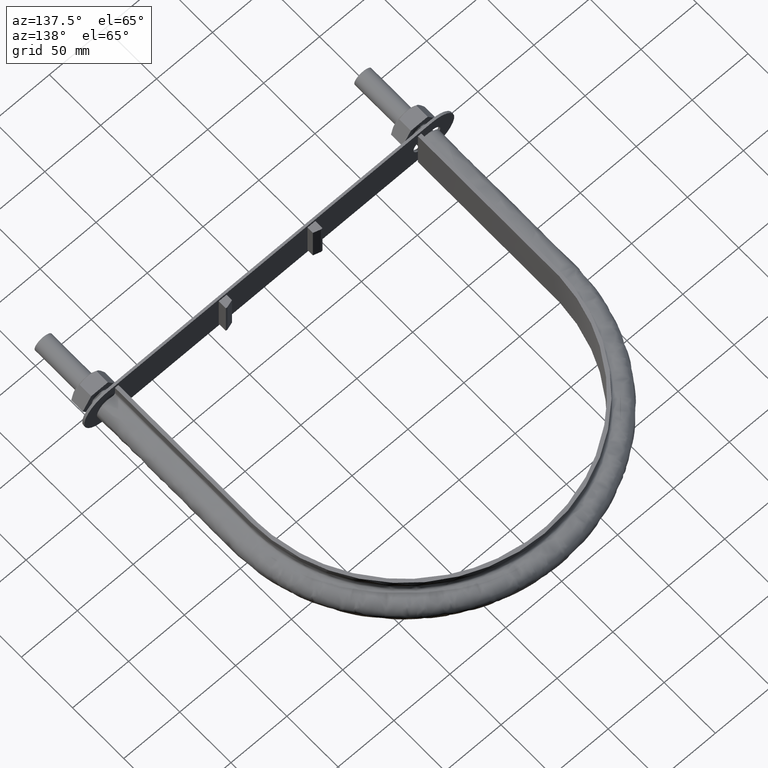
[diagram: clean part render]
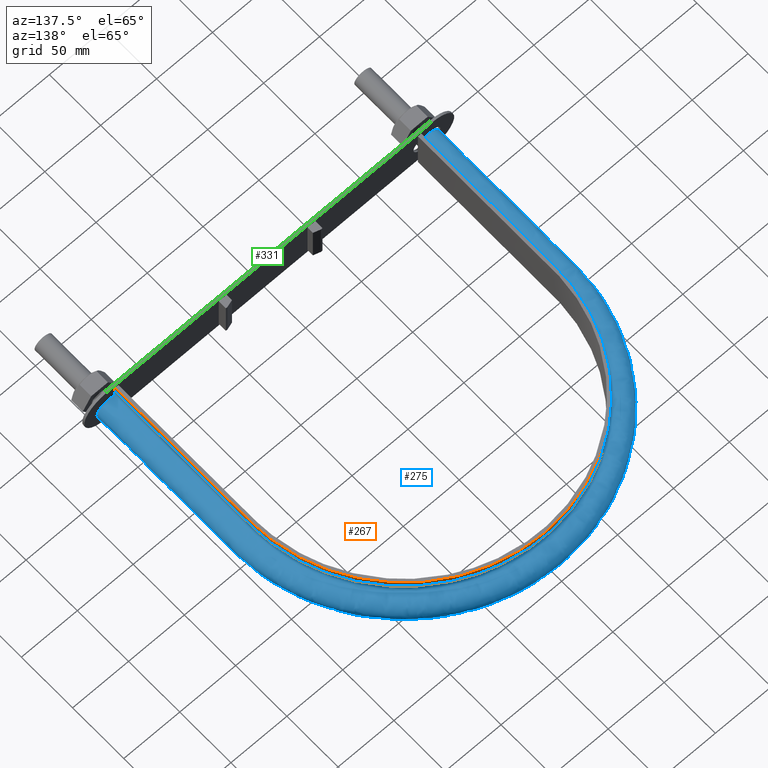
[diagram: same view with three faces highlighted in distinct colors, each labeled with its STEP entity id]
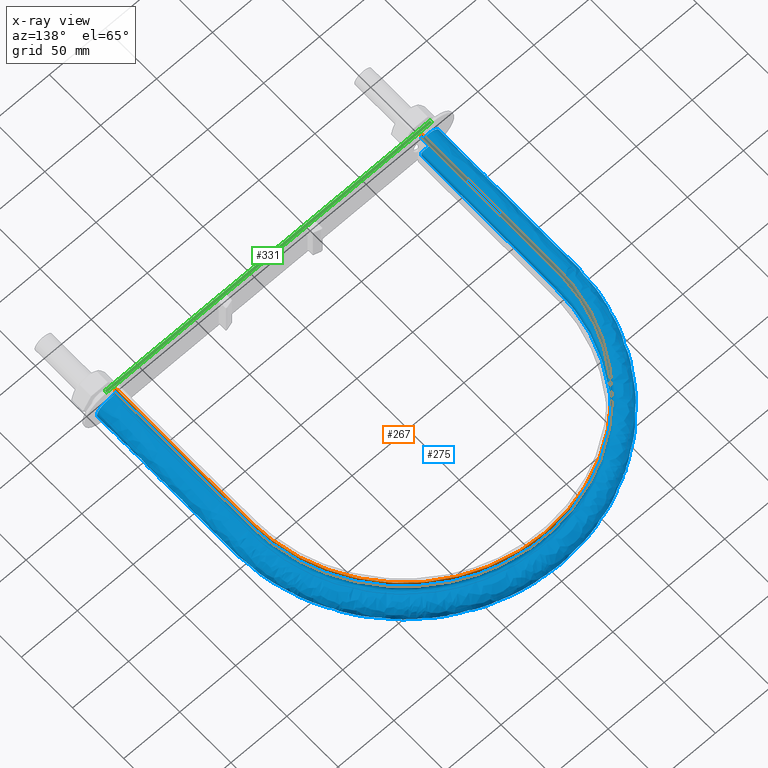
[diagram: x-ray of the same camera — body ghosted, the three highlighted faces saturated]
A machine part, auxiliary view with three faces highlighted in distinct colors.
The next image is the same camera in x-ray (body ghosted, the three faces saturated) — at least one of them is partly hidden behind the body in this view.
Their STEP definitions:

[orange] entity #267 — the highlighted face is a SurfaceOfExtrusion surface.
#267 = ADVANCED_FACE( '', ( #361 ), #362, .F. );
#361 = FACE_OUTER_BOUND( '', #580, .T. );
#362 = SURFACE_OF_LINEAR_EXTRUSION( '', #581, #582 );
#580 = EDGE_LOOP( '', ( #1717, #1718, #1719, #1720 ) );
#581 = B_SPLINE_CURVE_WITH_KNOTS( '', 3, ( #1721, #1722, #1723, #1724, #1725, #1726, #1727, #1728, #1729, #1730, #1731, #1732, #1733, #1734, #1735, #1736, #1737, #1738, #1739, #1740, #1741, #1742, #1743, #1744, #1745, #1746, #1747, #1748, #1749, #1750, #1751, #1752, #1753, #1754, #1755, #1756, #1757, #1758, #1759, #1760, #1761, #1762, #1763, #1764, #1765, #1766, #1767, #1768, #1769, #1770, #1771, #1772, #1773, #1774, #1775, #1776, #1777, #1778, #1779, #1780, #1781, #1782, #1783, #1784, #1785, #1786, #1787, #1788, #1789, #1790, #1791, #1792, #1793, #1794, #1795, #1796, #1797, #1798, #1799, #1800, #1801, #1802, #1803, #1804, #1805, #1806, #1807, #1808, #1809, #1810, #1811, #1812, #1813 ), .UNSPECIFIED., .F., .F., ( 4, 1, 1, 2, 2, 2, 2, 2, 2, 2, 2, 2, 2, 2, 2, 2, 2, 2, 2, 2, 2, 2, 2, 2, 2, 2, 2, 2, 2, 2, 2, 2, 2, 2, 2, 2, 2, 2, 2, 2, 2, 2, 2, 2, 2, 2, 1, 4 ), ( 0.000000000000000, 0.124999999999998, 0.187499999999997, 0.191406249999997, 0.195312499999997, 0.203124999999997, 0.218749999999997, 0.249999999999997, 0.257812499999997, 0.265624999999997, 0.281249999999997, 0.312499999999998, 0.328124999999998, 0.343749999999998, 0.374999999999998, 0.390624999999999, 0.398437499999999, 0.406249999999999, 0.437499999999999, 0.453124999999999, 0.460937499999999, 0.468749999999999, 0.499999999999999, 0.515624999999999, 0.523437499999999, 0.531249999999999, 0.562499999999999, 0.578124999999999, 0.585937499999999, 0.593749999999999, 0.624999999999999, 0.656249999999999, 0.664062499999999, 0.671874999999999, 0.687499999999998, 0.718749999999998, 0.722656249999998, 0.726562499999998, 0.734374999999998, 0.749999999999998, 0.781249999999999, 0.789062499999999, 0.796874999999999, 0.804687499999999, 0.808593749999999, 0.812499999999999, 0.874999999999999, 1.00000000000000 ), .UNSPECIFIED. );
#582 = VECTOR( '', #1814, 1000.00000000000 );
#1717 = ORIENTED_EDGE( '', *, *, #2556, .F. );
#1718 = ORIENTED_EDGE( '', *, *, #2557, .T. );
#1719 = ORIENTED_EDGE( '', *, *, #2558, .T. );
#1720 = ORIENTED_EDGE( '', *, *, #2559, .F. );
#1721 = CARTESIAN_POINT( '', ( -136.950000000000, 63.5000000000001, 15.0000000000000 ) );
#1722 = CARTESIAN_POINT( '', ( -136.950000000000, 92.1083518142184, 15.0000000000000 ) );
#1723 = CARTESIAN_POINT( '', ( -136.950000000000, 135.020879535546, 15.0000000000000 ) );
#1724 = CARTESIAN_POINT( '', ( -136.950000000000, 178.827418251068, 15.0000000000000 ) );
#1725 = CARTESIAN_POINT( '', ( -136.950000000000, 194.025605152371, 15.0000000000000 ) );
#1726 = CARTESIAN_POINT( '', ( -136.950000000000, 195.813627140760, 15.0000000000000 ) );
#1727 = CARTESIAN_POINT( '', ( -136.951346114390, 196.707775042566, 15.0000000000000 ) );
#1728 = CARTESIAN_POINT( '', ( -136.920609614582, 199.386681945511, 15.0000000000000 ) );
#1729 = CARTESIAN_POINT( '', ( -136.864816667886, 201.169029468827, 15.0000000000000 ) );
#1730 = CARTESIAN_POINT( '', ( -136.593146380454, 206.505464995943, 15.0000000000000 ) );
#1731 = CARTESIAN_POINT( '', ( -136.273189661635, 210.048967525581, 15.0000000000000 ) );
#1732 = CARTESIAN_POINT( '', ( -134.901802697672, 220.637621477264, 15.0000000000000 ) );
#1733 = CARTESIAN_POINT( '', ( -133.442512350631, 227.641291170171, 15.0000000000000 ) );
#1734 = CARTESIAN_POINT( '', ( -130.901383601595, 236.322953634696, 15.0000000000000 ) );
#1735 = CARTESIAN_POINT( '', ( -130.357015832177, 238.055610275364, 15.0000000000000 ) );
#1736 = CARTESIAN_POINT( '', ( -129.193847954834, 241.513353357774, 15.0000000000000 ) );
#1737 = CARTESIAN_POINT( '', ( -128.573476846171, 243.242131151952, 15.0000000000000 ) );
#1738 = CARTESIAN_POINT( '', ( -126.618174555290, 248.362723165804, 15.0000000000000 ) );
#1739 = CARTESIAN_POINT( '', ( -125.184490197969, 251.702984774706, 15.0000000000000 ) );
#1740 = CARTESIAN_POINT( '', ( -120.505328593638, 261.510336023067, 15.0000000000000 ) );
#1741 = CARTESIAN_POINT( '', ( -116.886061102882, 267.766429658881, 15.0000000000000 ) );
#1742 = CARTESIAN_POINT( '', ( -110.711856714430, 276.729863608687, 15.0000000000000 ) );
#1743 = CARTESIAN_POINT( '', ( -108.528201325971, 279.647880339848, 15.0000000000000 ) );
#1744 = CARTESIAN_POINT( '', ( -103.904407759562, 285.334716161008, 15.0000000000000 ) );
#1745 = CARTESIAN_POINT( '', ( -101.494535344134, 288.066402872891, 15.0000000000000 ) );
#1746 = CARTESIAN_POINT( '', ( -93.9768857717453, 295.932991567949, 15.0000000000000 ) );
#1747 = CARTESIAN_POINT( '', ( -88.5810092968216, 300.739345713163, 15.0000000000000 ) );
#1748 = CARTESIAN_POINT( '', ( -79.9242816112255, 307.306932196036, 15.0000000000000 ) );
#1749 = CARTESIAN_POINT( '', ( -76.9444034133846, 309.388585548724, 15.0000000000000 ) );
#1750 = CARTESIAN_POINT( '', ( -72.3295994596737, 312.345723108324, 15.0000000000000 ) );
#1751 = CARTESIAN_POINT( '', ( -70.7649027135226, 313.304967513352, 15.0000000000000 ) );
#1752 = CARTESIAN_POINT( '', ( -67.6140063459487, 315.151291429897, 15.0000000000000 ) );
#1753 = CARTESIAN_POINT( '', ( -66.0248395654176, 316.040393152112, 15.0000000000000 ) );
#1754 = CARTESIAN_POINT( '', ( -58.0112237793686, 320.317614365293, 15.0000000000000 ) );
#1755 = CARTESIAN_POINT( '', ( -51.3838695117630, 323.201965048637, 15.0000000000000 ) );
#1756 = CARTESIAN_POINT( '', ( -41.1199306990074, 326.726783518545, 15.0000000000000 ) );
#1757 = CARTESIAN_POINT( '', ( -37.6449536795560, 327.768486983704, 15.0000000000000 ) );
#1758 = CARTESIAN_POINT( '', ( -32.3508572250091, 329.128370680882, 15.0000000000000 ) );
#1759 = CARTESIAN_POINT( '', ( -30.5711219683584, 329.548134877370, 15.0000000000000 ) );
#1760 = CARTESIAN_POINT( '', ( -26.9898806015869, 330.317593884025, 15.0000000000000 ) );
#1761 = CARTESIAN_POINT( '', ( -25.1975634552121, 330.665375332185, 15.0000000000000 ) );
#1762 = CARTESIAN_POINT( '', ( -16.2276412077909, 332.222717729931, 15.0000000000000 ) );
#1763 = CARTESIAN_POINT( '', ( -9.02523440856828, 332.892110978601, 15.0000000000000 ) );
#1764 = CARTESIAN_POINT( '', ( 1.81786937464339, 333.036051739121, 15.0000000000000 ) );
#1765 = CARTESIAN_POINT( '', ( 5.43888442946928, 332.939261125259, 15.0000000000000 ) );
#1766 = CARTESIAN_POINT( '', ( 10.8804397715047, 332.575567070277, 15.0000000000000 ) );
#1767 = CARTESIAN_POINT( '', ( 12.6959650568680, 332.417887683017, 15.0000000000000 ) );
#1768 = CARTESIAN_POINT( '', ( 16.3304010621799, 332.028795956680, 15.0000000000000 ) );
#1769 = CARTESIAN_POINT( '', ( 18.1509778757317, 331.796964222104, 15.0000000000000 ) );
#1770 = CARTESIAN_POINT( '', ( 27.1816143256265, 330.463826032725, 15.0000000000000 ) );
#1771 = CARTESIAN_POINT( '', ( 34.2390508622082, 328.839668956545, 15.0000000000000 ) );
#1772 = CARTESIAN_POINT( '', ( 44.5810778790178, 325.588595998648, 15.0000000000000 ) );
#1773 = CARTESIAN_POINT( '', ( 47.9874716560253, 324.368228980460, 15.0000000000000 ) );
#1774 = CARTESIAN_POINT( '', ( 53.0340989443385, 322.327522487613, 15.0000000000000 ) );
#1775 = CARTESIAN_POINT( '', ( 54.7057757971041, 321.612133002601, 15.0000000000000 ) );
#1776 = CARTESIAN_POINT( '', ( 58.0278931759396, 320.110472498892, 15.0000000000000 ) );
#1777 = CARTESIAN_POINT( '', ( 59.6804492387638, 319.323156348271, 15.0000000000000 ) );
#1778 = CARTESIAN_POINT( '', ( 67.8662269615203, 315.218943105620, 15.0000000000000 ) );
#1779 = CARTESIAN_POINT( '', ( 74.0672509269292, 311.457093171530, 15.0000000000000 ) );
#1780 = CARTESIAN_POINT( '', ( 85.8066697855649, 303.021264559786, 15.0000000000000 ) );
#1781 = CARTESIAN_POINT( '', ( 91.3450708111372, 298.347294323490, 15.0000000000000 ) );
#1782 = CARTESIAN_POINT( '', ( 97.8308624293468, 291.902999344752, 15.0000000000000 ) );
#1783 = CARTESIAN_POINT( '', ( 99.1063522438755, 290.583042958306, 15.0000000000000 ) );
#1784 = CARTESIAN_POINT( '', ( 101.590244963731, 287.906741637720, 15.0000000000000 ) );
#1785 = CARTESIAN_POINT( '', ( 102.801672903783, 286.547491271699, 15.0000000000000 ) );
#1786 = CARTESIAN_POINT( '', ( 106.346254323219, 282.407722078791, 15.0000000000000 ) );
#1787 = CARTESIAN_POINT( '', ( 108.589893323642, 279.565315081671, 15.0000000000000 ) );
#1788 = CARTESIAN_POINT( '', ( 114.970214089517, 270.795700236810, 15.0000000000000 ) );
#1789 = CARTESIAN_POINT( '', ( 118.759288976830, 264.628165305694, 15.0000000000000 ) );
#1790 = CARTESIAN_POINT( '', ( 122.482049801510, 257.316381079696, 15.0000000000000 ) );
#1791 = CARTESIAN_POINT( '', ( 122.888127373352, 256.498732064797, 15.0000000000000 ) );
#1792 = CARTESIAN_POINT( '', ( 123.684984798983, 254.852857558546, 15.0000000000000 ) );
#1793 = CARTESIAN_POINT( '', ( 124.076188679038, 254.023697389436, 15.0000000000000 ) );
#1794 = CARTESIAN_POINT( '', ( 125.223076035006, 251.527782870250, 15.0000000000000 ) );
#1795 = CARTESIAN_POINT( '', ( 125.951536386374, 249.853956327218, 15.0000000000000 ) );
#1796 = CARTESIAN_POINT( '', ( 128.029666807743, 244.803138776700, 15.0000000000000 ) );
#1797 = CARTESIAN_POINT( '', ( 129.272445179675, 241.396908032733, 15.0000000000000 ) );
#1798 = CARTESIAN_POINT( '', ( 132.586786070951, 231.064969568914, 15.0000000000000 ) );
#1799 = CARTESIAN_POINT( '', ( 134.247821790206, 224.026964115282, 15.0000000000000 ) );
#1800 = CARTESIAN_POINT( '', ( 135.630952375180, 215.039845429983, 15.0000000000000 ) );
#1801 = CARTESIAN_POINT( '', ( 135.872641992840, 213.232864972873, 15.0000000000000 ) );
#1802 = CARTESIAN_POINT( '', ( 136.284803757172, 209.599422844283, 15.0000000000000 ) );
#1803 = CARTESIAN_POINT( '', ( 136.455153129533, 207.772516640444, 15.0000000000000 ) );
#1804 = CARTESIAN_POINT( '', ( 136.721567786733, 204.123756924612, 15.0000000000000 ) );
#1805 = CARTESIAN_POINT( '', ( 136.818027802696, 202.298840221395, 15.0000000000000 ) );
#1806 = CARTESIAN_POINT( '', ( 136.907499245267, 199.560658472590, 15.0000000000000 ) );
#1807 = CARTESIAN_POINT( '', ( 136.928116262671, 198.647796719940, 15.0000000000000 ) );
#1808 = CARTESIAN_POINT( '', ( 136.950875956315, 196.821803321073, 15.0000000000000 ) );
#1809 = CARTESIAN_POINT( '', ( 136.950000000000, 195.908627575341, 15.0000000000000 ) );
#1810 = CARTESIAN_POINT( '', ( 136.950000000000, 180.384857445818, 15.0000000000000 ) );
#1811 = CARTESIAN_POINT( '', ( 136.950000000000, 136.553035903637, 15.0000000000000 ) );
#1812 = CARTESIAN_POINT( '', ( 136.950000000000, 92.7212143614548, 15.0000000000000 ) );
#1813 = CARTESIAN_POINT( '', ( 136.950000000000, 63.5000000000000, 15.0000000000000 ) );
#1814 = DIRECTION( '', ( 7.49830360911069E-032, 3.06151588455594E-016, 1.00000000000000 ) );
#2556 = EDGE_CURVE( '', #2742, #2743, #2744, .T. );
#2557 = EDGE_CURVE( '', #2742, #2745, #2746, .T. );
#2558 = EDGE_CURVE( '', #2745, #2747, #2748, .T. );
#2559 = EDGE_CURVE( '', #2743, #2747, #2749, .T. );
#2742 = VERTEX_POINT( '', #3054 );
#2743 = VERTEX_POINT( '', #3055 );
#2744 = B_SPLINE_CURVE_WITH_KNOTS( '', 3, ( #3056, #3057, #3058, #3059, #3060, #3061, #3062, #3063, #3064, #3065, #3066, #3067, #3068, #3069, #3070, #3071, #3072 ), .UNSPECIFIED., .F., .F., ( 4, 3, 1, 1, 1, 1, 1, 1, 1, 3, 4 ), ( 0.000000000000000, 0.100000000000000, 0.200000000000000, 0.300000000000000, 0.400000000000000, 0.500000000000000, 0.600000000000000, 0.700000000000000, 0.800000000000000, 0.900000000000000, 1.00000000000000 ), .UNSPECIFIED. );
#2745 = VERTEX_POINT( '', #3073 );
#2746 = LINE( '', #3074, #3075 );
#2747 = VERTEX_POINT( '', #3076 );
#2748 = B_SPLINE_CURVE_WITH_KNOTS( '', 3, ( #3077, #3078, #3079, #3080, #3081, #3082, #3083, #3084, #3085, #3086, #3087, #3088, #3089, #3090, #3091, #3092, #3093, #3094, #3095, #3096, #3097, #3098, #3099, #3100, #3101, #3102, #3103, #3104, #3105, #3106, #3107, #3108, #3109, #3110, #3111, #3112, #3113, #3114, #3115, #3116, #3117, #3118, #3119, #3120, #3121, #3122, #3123, #3124, #3125, #3126, #3127, #3128, #3129, #3130, #3131, #3132, #3133, #3134, #3135, #3136, #3137, #3138, #3139, #3140, #3141, #3142, #3143, #3144, #3145, #3146, #3147, #3148, #3149, #3150, #3151, #3152, #3153, #3154, #3155, #3156, #3157, #3158, #3159, #3160, #3161, #3162, #3163, #3164, #3165, #3166, #3167, #3168, #3169, #3170, #3171, #3172, #3173, #3174, #3175, #3176, #3177, #3178, #3179, #3180, #3181, #3182, #3183 ), .UNSPECIFIED., .F., .F., ( 4, 1, 2, 2, 2, 2, 2, 2, 2, 2, 2, 2, 2, 2, 2, 2, 2, 2, 2, 2, 2, 2, 2, 2, 2, 2, 2, 2, 2, 2, 2, 2, 2, 2, 2, 1, 2, 2, 2, 2, 2, 2, 2, 2, 2, 2, 2, 2, 2, 2, 2, 2, 2, 1, 4 ), ( 1.38777878078145E-017, 0.0874256844655876, 0.131138526698381, 0.133870579337931, 0.136602631977481, 0.142066737256580, 0.152994947814778, 0.174851368931174, 0.180315474210273, 0.183047526849822, 0.185779579489372, 0.196707790047570, 0.218564211163965, 0.229492421722163, 0.232224474361713, 0.234956527001262, 0.240420632280361, 0.262277053396756, 0.273205263954954, 0.275937316594504, 0.278669369234053, 0.284133474513152, 0.305989895629548, 0.316918106187746, 0.322382211466844, 0.325114264106394, 0.327846316745943, 0.349702737862339, 0.360630948420537, 0.366095053699636, 0.368827106339185, 0.371559158978735, 0.393415580095130, 0.415272001211526, 0.418004053851076, 0.420736106490625, 0.426200211769724, 0.437128422327922, 0.458984843444318, 0.461716896083868, 0.464448948723417, 0.469913054002516, 0.480841264560713, 0.502697685677108, 0.508161790956207, 0.513625896235306, 0.524554106793503, 0.546410527909898, 0.551874633188997, 0.557338738468096, 0.562802843747194, 0.565534896386744, 0.568266949026293, 0.611979791259082, 0.699405475724661 ), .UNSPECIFIED. );
#2749 = LINE( '', #3184, #3185 );
#3054 = CARTESIAN_POINT( '', ( -136.950000000000, 63.5000000000001, 15.0000000000000 ) );
#3055 = CARTESIAN_POINT( '', ( 136.950000000000, 63.5000000000001, 15.0000000000000 ) );
#3056 = CARTESIAN_POINT( '', ( -136.950000000000, 63.5000000000001, 15.0000000000000 ) );
#3057 = CARTESIAN_POINT( '', ( -136.950000000000, 107.683333333333, 15.0000000000000 ) );
#3058 = CARTESIAN_POINT( '', ( -136.950000000000, 151.866666666667, 15.0000000000000 ) );
#3059 = CARTESIAN_POINT( '', ( -136.950000000000, 196.050000000000, 15.0000000000000 ) );
#3060 = CARTESIAN_POINT( '', ( -136.950000000000, 213.963857435017, 15.0000000000000 ) );
#3061 = CARTESIAN_POINT( '', ( -129.819269813161, 249.827750890366, 15.0000000000000 ) );
#3062 = CARTESIAN_POINT( '', ( -99.3593675184604, 295.408062105588, 15.0000000000000 ) );
#3063 = CARTESIAN_POINT( '', ( -53.7729022139835, 325.869642788267, 15.0000000000000 ) );
#3064 = CARTESIAN_POINT( '', ( 8.43729666865134E-014, 336.565178605866, 15.0000000000000 ) );
#3065 = CARTESIAN_POINT( '', ( 53.7729022139835, 325.869642788268, 15.0000000000000 ) );
#3066 = CARTESIAN_POINT( '', ( 99.3593675184605, 295.408062105588, 15.0000000000000 ) );
#3067 = CARTESIAN_POINT( '', ( 129.819269813161, 249.827750890366, 15.0000000000000 ) );
#3068 = CARTESIAN_POINT( '', ( 136.950000000000, 213.963857435017, 15.0000000000000 ) );
#3069 = CARTESIAN_POINT( '', ( 136.950000000000, 196.050000000000, 15.0000000000000 ) );
#3070 = CARTESIAN_POINT( '', ( 136.950000000000, 151.866666666667, 15.0000000000000 ) );
#3071 = CARTESIAN_POINT( '', ( 136.950000000000, 107.683333333333, 15.0000000000000 ) );
#3072 = CARTESIAN_POINT( '', ( 136.950000000000, 63.5000000000000, 15.0000000000000 ) );
#3073 = CARTESIAN_POINT( '', ( -136.950000000000, 63.5000000000001, 20.0000000000000 ) );
#3074 = CARTESIAN_POINT( '', ( -136.950000000000, 63.5000000000001, 15.0000000000000 ) );
#3075 = VECTOR( '', #4084, 1000.00000000000 );
#3076 = CARTESIAN_POINT( '', ( 136.950000000000, 63.5000000000000, 20.0000000000000 ) );
#3077 = CARTESIAN_POINT( '', ( -136.950000000000, 63.5000000000001, 20.0000000000000 ) );
#3078 = CARTESIAN_POINT( '', ( -136.950000000000, 92.6419002480970, 20.0000000000000 ) );
#3079 = CARTESIAN_POINT( '', ( -136.950000000000, 136.354750620242, 20.0000000000000 ) );
#3080 = CARTESIAN_POINT( '', ( -136.950000000000, 180.067600992388, 20.0000000000000 ) );
#3081 = CARTESIAN_POINT( '', ( -136.950000000000, 195.549235499189, 20.0000000000000 ) );
#3082 = CARTESIAN_POINT( '', ( -136.952005766823, 196.459921105955, 20.0000000000000 ) );
#3083 = CARTESIAN_POINT( '', ( -136.934979206279, 198.281279481058, 20.0000000000000 ) );
#3084 = CARTESIAN_POINT( '', ( -136.916553871832, 199.191952619811, 20.0000000000000 ) );
#3085 = CARTESIAN_POINT( '', ( -136.834753701177, 201.923955849783, 20.0000000000000 ) );
#3086 = CARTESIAN_POINT( '', ( -136.743599783762, 203.741272047870, 20.0000000000000 ) );
#3087 = CARTESIAN_POINT( '', ( -136.363495553162, 209.166484778742, 20.0000000000000 ) );
#3088 = CARTESIAN_POINT( '', ( -135.967488703048, 212.753870458483, 20.0000000000000 ) );
#3089 = CARTESIAN_POINT( '', ( -134.367551969832, 223.431038801508, 20.0000000000000 ) );
#3090 = CARTESIAN_POINT( '', ( -132.750553866294, 230.435595074194, 20.0000000000000 ) );
#3091 = CARTESIAN_POINT( '', ( -130.033489035348, 239.047725779313, 20.0000000000000 ) );
#3092 = CARTESIAN_POINT( '', ( -129.454886141077, 240.762891350757, 20.0000000000000 ) );
#3093 = CARTESIAN_POINT( '', ( -128.533317502652, 243.324567410145, 20.0000000000000 ) );
#3094 = CARTESIAN_POINT( '', ( -128.217212893149, 244.176620027551, 20.0000000000000 ) );
#3095 = CARTESIAN_POINT( '', ( -127.566740219219, 245.876957051044, 20.0000000000000 ) );
#3096 = CARTESIAN_POINT( '', ( -127.232398800356, 246.725180838081, 20.0000000000000 ) );
#3097 = CARTESIAN_POINT( '', ( -125.522807242117, 250.937555990539, 20.0000000000000 ) );
#3098 = CARTESIAN_POINT( '', ( -124.027890382201, 254.231015655088, 20.0000000000000 ) );
#3099 = CARTESIAN_POINT( '', ( -119.177772488664, 263.891903517811, 20.0000000000000 ) );
#3100 = CARTESIAN_POINT( '', ( -115.456951462216, 270.039688790399, 20.0000000000000 ) );
#3101 = CARTESIAN_POINT( '', ( -109.152951019672, 278.827169774975, 20.0000000000000 ) );
#3102 = CARTESIAN_POINT( '', ( -106.930050833054, 281.683299996956, 20.0000000000000 ) );
#3103 = CARTESIAN_POINT( '', ( -103.994442146736, 285.159156375515, 20.0000000000000 ) );
#3104 = CARTESIAN_POINT( '', ( -103.399206220783, 285.849830869774, 20.0000000000000 ) );
#3105 = CARTESIAN_POINT( '', ( -102.198265091278, 287.215468669274, 20.0000000000000 ) );
#3106 = CARTESIAN_POINT( '', ( -101.591920700932, 287.891203542517, 20.0000000000000 ) );
#3107 = CARTESIAN_POINT( '', ( -99.7553846231913, 289.897299082128, 20.0000000000000 ) );
#3108 = CARTESIAN_POINT( '', ( -98.5077032633144, 291.206566629285, 20.0000000000000 ) );
#3109 = CARTESIAN_POINT( '', ( -92.1539858603008, 297.613835991367, 20.0000000000000 ) );
#3110 = CARTESIAN_POINT( '', ( -86.7024715106621, 302.295179626358, 20.0000000000000 ) );
#3111 = CARTESIAN_POINT( '', ( -77.9891669345073, 308.670721620161, 20.0000000000000 ) );
#3112 = CARTESIAN_POINT( '', ( -74.9946413234069, 310.687249879647, 20.0000000000000 ) );
#3113 = CARTESIAN_POINT( '', ( -71.1363767592716, 313.069086719331, 20.0000000000000 ) );
#3114 = CARTESIAN_POINT( '', ( -70.3589796436355, 313.538526390094, 20.0000000000000 ) );
#3115 = CARTESIAN_POINT( '', ( -68.7925101038831, 314.463324926284, 20.0000000000000 ) );
#3116 = CARTESIAN_POINT( '', ( -68.0028416365671, 314.918994503189, 20.0000000000000 ) );
#3117 = CARTESIAN_POINT( '', ( -65.6265150792910, 316.258978990772, 20.0000000000000 ) );
#3118 = CARTESIAN_POINT( '', ( -64.0295971988748, 317.118030590869, 20.0000000000000 ) );
#3119 = CARTESIAN_POINT( '', ( -55.9824089667687, 321.244365806939, 20.0000000000000 ) );
#3120 = CARTESIAN_POINT( '', ( -49.3439512001540, 324.003826159947, 20.0000000000000 ) );
#3121 = CARTESIAN_POINT( '', ( -39.0910082444984, 327.346268295589, 20.0000000000000 ) );
#3122 = CARTESIAN_POINT( '', ( -35.6241551653292, 328.327634953126, 20.0000000000000 ) );
#3123 = CARTESIAN_POINT( '', ( -30.3492784457228, 329.598384851549, 20.0000000000000 ) );
#3124 = CARTESIAN_POINT( '', ( -28.5785337099375, 329.988365122304, 20.0000000000000 ) );
#3125 = CARTESIAN_POINT( '', ( -25.9034309357600, 330.522102744637, 20.0000000000000 ) );
#3126 = CARTESIAN_POINT( '', ( -25.0077107436048, 330.691611247168, 20.0000000000000 ) );
#3127 = CARTESIAN_POINT( '', ( -23.2172138820089, 331.012112274077, 20.0000000000000 ) );
#3128 = CARTESIAN_POINT( '', ( -22.3218036874214, 331.163270419115, 20.0000000000000 ) );
#3129 = CARTESIAN_POINT( '', ( -14.2616746941677, 332.442909678168, 20.0000000000000 ) );
#3130 = CARTESIAN_POINT( '', ( -7.08688203431513, 333.005162357812, 20.0000000000000 ) );
#3131 = CARTESIAN_POINT( '', ( 3.69045053044874, 332.997356057590, 20.0000000000000 ) );
#3132 = CARTESIAN_POINT( '', ( 7.28543714268972, 332.851850186394, 20.0000000000000 ) );
#3133 = CARTESIAN_POINT( '', ( 12.6817359396739, 332.418941046075, 20.0000000000000 ) );
#3134 = CARTESIAN_POINT( '', ( 14.4811397915352, 332.238800753868, 20.0000000000000 ) );
#3135 = CARTESIAN_POINT( '', ( 17.1812121944213, 331.914258555030, 20.0000000000000 ) );
#3136 = CARTESIAN_POINT( '', ( 18.0813968219189, 331.797056870437, 20.0000000000000 ) );
#3137 = CARTESIAN_POINT( '', ( 19.8820902819452, 331.544430686410, 20.0000000000000 ) );
#3138 = CARTESIAN_POINT( '', ( 20.7835449490400, 331.408813108141, 20.0000000000000 ) );
#3139 = CARTESIAN_POINT( '', ( 28.8670965883812, 330.111328549364, 20.0000000000000 ) );
#3140 = CARTESIAN_POINT( '', ( 35.8703135520974, 328.406800400232, 20.0000000000000 ) );
#3141 = CARTESIAN_POINT( '', ( 49.5251538415543, 323.933849723644, 20.0000000000000 ) );
#3142 = CARTESIAN_POINT( '', ( 56.1748232267838, 321.159514727641, 20.0000000000000 ) );
#3143 = CARTESIAN_POINT( '', ( 63.4492399728088, 317.413652350479, 20.0000000000000 ) );
#3144 = CARTESIAN_POINT( '', ( 64.2555412528510, 316.988297906811, 20.0000000000000 ) );
#3145 = CARTESIAN_POINT( '', ( 65.8566175141639, 316.123190874316, 20.0000000000000 ) );
#3146 = CARTESIAN_POINT( '', ( 68.2414579243001, 314.803750954360, 20.0000000000000 ) );
#3147 = CARTESIAN_POINT( '', ( 70.5763589403755, 313.419469626310, 20.0000000000000 ) );
#3148 = CARTESIAN_POINT( '', ( 75.1805857318935, 310.565763947977, 20.0000000000000 ) );
#3149 = CARTESIAN_POINT( '', ( 78.1627035340816, 308.549856366451, 20.0000000000000 ) );
#3150 = CARTESIAN_POINT( '', ( 86.8543207620398, 302.171383663367, 20.0000000000000 ) );
#3151 = CARTESIAN_POINT( '', ( 92.3077229888384, 297.476301431764, 20.0000000000000 ) );
#3152 = CARTESIAN_POINT( '', ( 98.0418417248406, 291.673728261727, 20.0000000000000 ) );
#3153 = CARTESIAN_POINT( '', ( 98.6733697505287, 291.021731690663, 20.0000000000000 ) );
#3154 = CARTESIAN_POINT( '', ( 99.9251833237755, 289.703141292680, 20.0000000000000 ) );
#3155 = CARTESIAN_POINT( '', ( 100.546136743136, 289.035752086237, 20.0000000000000 ) );
#3156 = CARTESIAN_POINT( '', ( 102.386046552857, 287.018007311468, 20.0000000000000 ) );
#3157 = CARTESIAN_POINT( '', ( 103.581668710415, 285.652670943038, 20.0000000000000 ) );
#3158 = CARTESIAN_POINT( '', ( 107.077810366195, 281.497593093918, 20.0000000000000 ) );
#3159 = CARTESIAN_POINT( '', ( 109.287409665404, 278.648655660809, 20.0000000000000 ) );
#3160 = CARTESIAN_POINT( '', ( 115.563663674952, 269.872310524428, 20.0000000000000 ) );
#3161 = CARTESIAN_POINT( '', ( 119.278439319531, 263.715802833907, 20.0000000000000 ) );
#3162 = CARTESIAN_POINT( '', ( 123.322162063997, 255.629687512519, 20.0000000000000 ) );
#3163 = CARTESIAN_POINT( '', ( 124.100657851929, 253.992770208303, 20.0000000000000 ) );
#3164 = CARTESIAN_POINT( '', ( 125.595826737251, 250.678684334611, 20.0000000000000 ) );
#3165 = CARTESIAN_POINT( '', ( 126.312684101755, 249.000403133013, 20.0000000000000 ) );
#3166 = CARTESIAN_POINT( '', ( 128.350441665646, 243.950404789004, 20.0000000000000 ) );
#3167 = CARTESIAN_POINT( '', ( 129.565681668817, 240.548771227836, 20.0000000000000 ) );
#3168 = CARTESIAN_POINT( '', ( 132.799201309552, 230.243261059046, 20.0000000000000 ) );
#3169 = CARTESIAN_POINT( '', ( 134.406489655848, 223.239070076663, 20.0000000000000 ) );
#3170 = CARTESIAN_POINT( '', ( 135.730368078418, 214.316580552522, 20.0000000000000 ) );
#3171 = CARTESIAN_POINT( '', ( 135.960596827438, 212.523650463587, 20.0000000000000 ) );
#3172 = CARTESIAN_POINT( '', ( 136.350715609651, 208.920622076927, 20.0000000000000 ) );
#3173 = CARTESIAN_POINT( '', ( 136.510773884774, 207.109390090217, 20.0000000000000 ) );
#3174 = CARTESIAN_POINT( '', ( 136.758613068842, 203.474281669832, 20.0000000000000 ) );
#3175 = CARTESIAN_POINT( '', ( 136.846031799769, 201.656639207719, 20.0000000000000 ) );
#3176 = CARTESIAN_POINT( '', ( 136.922369077726, 198.930043041100, 20.0000000000000 ) );
#3177 = CARTESIAN_POINT( '', ( 136.939052762000, 198.021156467249, 20.0000000000000 ) );
#3178 = CARTESIAN_POINT( '', ( 136.951967908155, 196.203333870085, 20.0000000000000 ) );
#3179 = CARTESIAN_POINT( '', ( 136.950000000000, 195.294402200343, 20.0000000000000 ) );
#3180 = CARTESIAN_POINT( '', ( 136.950000000000, 179.842644700992, 20.0000000000000 ) );
#3181 = CARTESIAN_POINT( '', ( 136.950000000000, 136.214152938120, 20.0000000000000 ) );
#3182 = CARTESIAN_POINT( '', ( 136.950000000000, 92.5856611752483, 20.0000000000000 ) );
#3183 = CARTESIAN_POINT( '', ( 136.950000000000, 63.5000000000000, 20.0000000000000 ) );
#3184 = CARTESIAN_POINT( '', ( 136.950000000000, 63.5000000000000, 15.0000000000000 ) );
#3185 = VECTOR( '', #4085, 1000.00000000000 );
#4084 = DIRECTION( '', ( 7.49830360911069E-032, 3.06151588455594E-016, 1.00000000000000 ) );
#4085 = DIRECTION( '', ( 7.49830360911069E-032, 3.06151588455594E-016, 1.00000000000000 ) );

[blue] entity #275 — the highlighted face is a freeform B-spline surface patch.
#275 = ADVANCED_FACE( '', ( #380 ), #381, .F. );
#380 = FACE_OUTER_BOUND( '', #788, .T. );
#381 = B_SPLINE_SURFACE_WITH_KNOTS( '', 3, 3, ( ( #789, #790, #791, #792, #793, #794, #795, #796, #797, #798, #799, #800, #801, #802, #803, #804, #805 ), ( #806, #807, #808, #809, #810, #811, #812, #813, #814, #815, #816, #817, #818, #819, #820, #821, #822 ), ( #823, #824, #825, #826, #827, #828, #829, #830, #831, #832, #833, #834, #835, #836, #837, #838, #839 ), ( #840, #841, #842, #843, #844, #845, #846, #847, #848, #849, #850, #851, #852, #853, #854, #855, #856 ), ( #857, #858, #859, #860, #861, #862, #863, #864, #865, #866, #867, #868, #869, #870, #871, #872, #873 ), ( #874, #875, #876, #877, #878, #879, #880, #881, #882, #883, #884, #885, #886, #887, #888, #889, #890 ), ( #891, #892, #893, #894, #895, #896, #897, #898, #899, #900, #901, #902, #903, #904, #905, #906, #907 ), ( #908, #909, #910, #911, #912, #913, #914, #915, #916, #917, #918, #919, #920, #921, #922, #923, #924 ), ( #925, #926, #927, #928, #929, #930, #931, #932, #933, #934, #935, #936, #937, #938, #939, #940, #941 ), ( #942, #943, #944, #945, #946, #947, #948, #949, #950, #951, #952, #953, #954, #955, #956, #957, #958 ), ( #959, #960, #961, #962, #963, #964, #965, #966, #967, #968, #969, #970, #971, #972, #973, #974, #975 ), ( #976, #977, #978, #979, #980, #981, #982, #983, #984, #985, #986, #987, #988, #989, #990, #991, #992 ), ( #993, #994, #995, #996, #997, #998, #999, #1000, #1001, #1002, #1003, #1004, #1005, #1006, #1007, #1008, #1009 ), ( #1010, #1011, #1012, #1013, #1014, #1015, #1016, #1017, #1018, #1019, #1020, #1021, #1022, #1023, #1024, #1025, #1026 ), ( #1027, #1028, #1029, #1030, #1031, #1032, #1033, #1034, #1035, #1036, #1037, #1038, #1039, #1040, #1041, #1042, #1043 ), ( #1044, #1045, #1046, #1047, #1048, #1049, #1050, #1051, #1052, #1053, #1054, #1055, #1056, #1057, #1058, #1059, #1060 ), ( #1061, #1062, #1063, #1064, #1065, #1066, #1067, #1068, #1069, #1070, #1071, #1072, #1073, #1074, #1075, #1076, #1077 ), ( #1078, #1079, #1080, #1081, #1082, #1083, #1084, #1085, #1086, #1087, #1088, #1089, #1090, #1091, #1092, #1093, #1094 ), ( #1095, #1096, #1097, #1098, #1099, #1100, #1101, #1102, #1103, #1104, #1105, #1106, #1107, #1108, #1109, #1110, #1111 ), ( #1112, #1113, #1114, #1115, #1116, #1117, #1118, #1119, #1120, #1121, #1122, #1123, #1124, #1125, #1126, #1127, #1128 ), ( #1129, #1130, #1131, #1132, #1133, #1134, #1135, #1136, #1137, #1138, #1139, #1140, #1141, #1142, #1143, #1144, #1145 ), ( #1146, #1147, #1148, #1149, #1150, #1151, #1152, #1153, #1154, #1155, #1156, #1157, #1158, #1159, #1160, #1161, #1162 ), ( #1163, #1164, #1165, #1166, #1167, #1168, #1169, #1170, #1171, #1172, #1173, #1174, #1175, #1176, #1177, #1178, #1179 ), ( #1180, #1181, #1182, #1183, #1184, #1185, #1186, #1187, #1188, #1189, #1190, #1191, #1192, #1193, #1194, #1195, #1196 ), ( #1197, #1198, #1199, #1200, #1201, #1202, #1203, #1204, #1205, #1206, #1207, #1208, #1209, #1210, #1211, #1212, #1213 ), ( #1214, #1215, #1216, #1217, #1218, #1219, #1220, #1221, #1222, #1223, #1224, #1225, #1226, #1227, #1228, #1229, #1230 ), ( #1231, #1232, #1233, #1234, #1235, #1236, #1237, #1238, #1239, #1240, #1241, #1242, #1243, #1244, #1245, #1246, #1247 ), ( #1248, #1249, #1250, #1251, #1252, #1253, #1254, #1255, #1256, #1257, #1258, #1259, #1260, #1261, #1262, #1263, #1264 ), ( #1265, #1266, #1267, #1268, #1269, #1270, #1271, #1272, #1273, #1274, #1275, #1276, #1277, #1278, #1279, #1280, #1281 ), ( #1282, #1283, #1284, #1285, #1286, #1287, #1288, #1289, #1290, #1291, #1292, #1293, #1294, #1295, #1296, #1297, #1298 ), ( #1299, #1300, #1301, #1302, #1303, #1304, #1305, #1306, #1307, #1308, #1309, #1310, #1311, #1312, #1313, #1314, #1315 ), ( #1316, #1317, #1318, #1319, #1320, #1321, #1322, #1323, #1324, #1325, #1326, #1327, #1328, #1329, #1330, #1331, #1332 ) ), .UNSPECIFIED., .F., .F., .F., ( 4, 3, 1, 1, 1, 3, 3, 1, 1, 1, 1, 3, 3, 1, 1, 1, 3, 4 ), ( 4, 3, 1, 1, 1, 1, 1, 1, 1, 3, 4 ), ( 0.100000000000000, 0.150000000000000, 0.200000000000000, 0.250000000000000, 0.300000000000000, 0.350000000000000, 0.400000000000000, 0.450000000000000, 0.500000000000000, 0.550000000000000, 0.600000000000000, 0.650000000000000, 0.700000000000000, 0.750000000000000, 0.800000000000000, 0.850000000000000, 0.900000000000000, 0.950000000000000 ), ( 0.000000000000000, 1.00000000000000, 2.00000000000000, 3.00000000000000, 4.00000000000000, 5.00000000000000, 6.00000000000000, 7.00000000000000, 8.00000000000000, 9.00000000000000, 10.0000000000000 ), .UNSPECIFIED. );
#788 = EDGE_LOOP( '', ( #1971, #1972, #1973, #1974 ) );
#789 = CARTESIAN_POINT( '', ( 136.950000000000, 63.5000000000000, -20.0000000000000 ) );
#790 = CARTESIAN_POINT( '', ( 136.950000000000, 107.683333333333, -20.0000000000000 ) );
#791 = CARTESIAN_POINT( '', ( 136.950000000000, 151.866666666667, -20.0000000000000 ) );
#792 = CARTESIAN_POINT( '', ( 136.950000000000, 196.050000000000, -20.0000000000000 ) );
#793 = CARTESIAN_POINT( '', ( 136.950000000000, 213.963857435017, -20.0000000000000 ) );
#794 = CARTESIAN_POINT( '', ( 129.819269813161, 249.827750890366, -20.0000000000000 ) );
#795 = CARTESIAN_POINT( '', ( 99.3593675184605, 295.408062105588, -20.0000000000001 ) );
#796 = CARTESIAN_POINT( '', ( 53.7729022139835, 325.869642788268, -20.0000000000000 ) );
#797 = CARTESIAN_POINT( '', ( 1.19278542038567E-013, 336.565178605866, -20.0000000000000 ) );
#798 = CARTESIAN_POINT( '', ( -53.7729022139834, 325.869642788267, -20.0000000000000 ) );
#799 = CARTESIAN_POINT( '', ( -99.3593675184604, 295.408062105588, -20.0000000000000 ) );
#800 = CARTESIAN_POINT( '', ( -129.819269813161, 249.827750890366, -20.0000000000000 ) );
#801 = CARTESIAN_POINT( '', ( -136.950000000000, 213.963857435017, -20.0000000000000 ) );
#802 = CARTESIAN_POINT( '', ( -136.950000000000, 196.050000000000, -20.0000000000000 ) );
#803 = CARTESIAN_POINT( '', ( -136.950000000000, 151.866666666667, -20.0000000000000 ) );
#804 = CARTESIAN_POINT( '', ( -136.950000000000, 107.683333333333, -20.0000000000000 ) );
#805 = CARTESIAN_POINT( '', ( -136.950000000000, 63.5000000000001, -20.0000000000000 ) );
#806 = CARTESIAN_POINT( '', ( 136.950000000000, 63.5000000000000, -17.3666666666667 ) );
#807 = CARTESIAN_POINT( '', ( 136.950000000000, 107.683333333333, -17.3666666666667 ) );
#808 = CARTESIAN_POINT( '', ( 136.950000000000, 151.866666666667, -17.3666666666667 ) );
#809 = CARTESIAN_POINT( '', ( 136.950000000000, 196.050000000000, -17.3666666666667 ) );
#810 = CARTESIAN_POINT( '', ( 136.950000000000, 213.963857435017, -17.3666666666667 ) );
#811 = CARTESIAN_POINT( '', ( 129.819269813161, 249.827750890366, -17.3666666666667 ) );
#812 = CARTESIAN_POINT( '', ( 99.3593675184605, 295.408062105588, -17.3666666666667 ) );
#813 = CARTESIAN_POINT( '', ( 53.7729022139835, 325.869642788268, -17.3666666666667 ) );
#814 = CARTESIAN_POINT( '', ( 1.10604924658683E-013, 336.565178605866, -17.3666666666667 ) );
#815 = CARTESIAN_POINT( '', ( -53.7729022139834, 325.869642788267, -17.3666666666667 ) );
#816 = CARTESIAN_POINT( '', ( -99.3593675184604, 295.408062105588, -17.3666666666667 ) );
#817 = CARTESIAN_POINT( '', ( -129.819269813161, 249.827750890366, -17.3666666666667 ) );
#818 = CARTESIAN_POINT( '', ( -136.950000000000, 213.963857435017, -17.3666666666667 ) );
#819 = CARTESIAN_POINT( '', ( -136.950000000000, 196.050000000000, -17.3666666666667 ) );
#820 = CARTESIAN_POINT( '', ( -136.950000000000, 151.866666666667, -17.3666666666667 ) );
#821 = CARTESIAN_POINT( '', ( -136.950000000000, 107.683333333333, -17.3666666666667 ) );
#822 = CARTESIAN_POINT( '', ( -136.950000000000, 63.5000000000001, -17.3666666666667 ) );
#823 = CARTESIAN_POINT( '', ( 136.950000000000, 63.5000000000000, -14.7333333333333 ) );
#824 = CARTESIAN_POINT( '', ( 136.950000000000, 107.683333333333, -14.7333333333333 ) );
#825 = CARTESIAN_POINT( '', ( 136.950000000000, 151.866666666667, -14.7333333333333 ) );
#826 = CARTESIAN_POINT( '', ( 136.950000000000, 196.050000000000, -14.7333333333333 ) );
#827 = CARTESIAN_POINT( '', ( 136.950000000000, 213.963857435017, -14.7333333333333 ) );
#828 = CARTESIAN_POINT( '', ( 129.819269813161, 249.827750890366, -14.7333333333333 ) );
#829 = CARTESIAN_POINT( '', ( 99.3593675184605, 295.408062105588, -14.7333333333334 ) );
#830 = CARTESIAN_POINT( '', ( 53.7729022139835, 325.869642788268, -14.7333333333333 ) );
#831 = CARTESIAN_POINT( '', ( 1.01931307278799E-013, 336.565178605866, -14.7333333333333 ) );
#832 = CARTESIAN_POINT( '', ( -53.7729022139834, 325.869642788267, -14.7333333333333 ) );
#833 = CARTESIAN_POINT( '', ( -99.3593675184604, 295.408062105588, -14.7333333333333 ) );
#834 = CARTESIAN_POINT( '', ( -129.819269813161, 249.827750890366, -14.7333333333333 ) );
#835 = CARTESIAN_POINT( '', ( -136.950000000000, 213.963857435017, -14.7333333333333 ) );
#836 = CARTESIAN_POINT( '', ( -136.950000000000, 196.050000000000, -14.7333333333333 ) );
#837 = CARTESIAN_POINT( '', ( -136.950000000000, 151.866666666667, -14.7333333333333 ) );
#838 = CARTESIAN_POINT( '', ( -136.950000000000, 107.683333333333, -14.7333333333333 ) );
#839 = CARTESIAN_POINT( '', ( -136.950000000000, 63.5000000000001, -14.7333333333333 ) );
#840 = CARTESIAN_POINT( '', ( 136.950000000000, 63.5000000000000, -12.1000000000000 ) );
#841 = CARTESIAN_POINT( '', ( 136.950000000000, 107.683333333333, -12.1000000000000 ) );
#842 = CARTESIAN_POINT( '', ( 136.950000000000, 151.866666666667, -12.1000000000000 ) );
#843 = CARTESIAN_POINT( '', ( 136.950000000000, 196.050000000000, -12.1000000000000 ) );
#844 = CARTESIAN_POINT( '', ( 136.950000000000, 213.963857435017, -12.1000000000000 ) );
#845 = CARTESIAN_POINT( '', ( 129.819269813161, 249.827750890366, -12.1000000000000 ) );
#846 = CARTESIAN_POINT( '', ( 99.3593675184605, 295.408062105588, -12.1000000000000 ) );
#847 = CARTESIAN_POINT( '', ( 53.7729022139835, 325.869642788268, -12.1000000000000 ) );
#848 = CARTESIAN_POINT( '', ( 9.15229664229381E-014, 336.565178605866, -12.1000000000000 ) );
#849 = CARTESIAN_POINT( '', ( -53.7729022139834, 325.869642788267, -12.1000000000000 ) );
#850 = CARTESIAN_POINT( '', ( -99.3593675184604, 295.408062105588, -12.1000000000000 ) );
#851 = CARTESIAN_POINT( '', ( -129.819269813161, 249.827750890366, -12.1000000000000 ) );
#852 = CARTESIAN_POINT( '', ( -136.950000000000, 213.963857435017, -12.1000000000000 ) );
#853 = CARTESIAN_POINT( '', ( -136.950000000000, 196.050000000000, -12.1000000000000 ) );
#854 = CARTESIAN_POINT( '', ( -136.950000000000, 151.866666666667, -12.1000000000000 ) );
#855 = CARTESIAN_POINT( '', ( -136.950000000000, 107.683333333333, -12.1000000000000 ) );
#856 = CARTESIAN_POINT( '', ( -136.950000000000, 63.5000000000001, -12.1000000000000 ) );
#857 = CARTESIAN_POINT( '', ( 136.950000000000, 63.5000000000000, -11.8382358417233 ) );
#858 = CARTESIAN_POINT( '', ( 136.950000000000, 107.683333333333, -11.8382358417233 ) );
#859 = CARTESIAN_POINT( '', ( 136.950000000000, 151.866666666667, -11.8382358417233 ) );
#860 = CARTESIAN_POINT( '', ( 136.950000000000, 196.050000000000, -11.8382358417233 ) );
#861 = CARTESIAN_POINT( '', ( 136.950000000000, 213.963857435017, -11.8382358417233 ) );
#862 = CARTESIAN_POINT( '', ( 129.819269813161, 249.827750890366, -11.8382358417233 ) );
#863 = CARTESIAN_POINT( '', ( 99.3593675184605, 295.408062105588, -11.8382358417233 ) );
#864 = CARTESIAN_POINT( '', ( 53.7729022139835, 325.869642788268, -11.8382358417233 ) );
#865 = CARTESIAN_POINT( '', ( 8.97882429469613E-014, 336.565178605866, -11.8382358417233 ) );
#866 = CARTESIAN_POINT( '', ( -53.7729022139834, 325.869642788267, -11.8382358417233 ) );
#867 = CARTESIAN_POINT( '', ( -99.3593675184604, 295.408062105588, -11.8382358417233 ) );
#868 = CARTESIAN_POINT( '', ( -129.819269813161, 249.827750890366, -11.8382358417233 ) );
#869 = CARTESIAN_POINT( '', ( -136.950000000000, 213.963857435017, -11.8382358417233 ) );
#870 = CARTESIAN_POINT( '', ( -136.950000000000, 196.050000000000, -11.8382358417233 ) );
#871 = CARTESIAN_POINT( '', ( -136.950000000000, 151.866666666667, -11.8382358417233 ) );
#872 = CARTESIAN_POINT( '', ( -136.950000000000, 107.683333333333, -11.8382358417233 ) );
#873 = CARTESIAN_POINT( '', ( -136.950000000000, 63.5000000000001, -11.8382358417233 ) );
#874 = CARTESIAN_POINT( '', ( 137.054136256836, 63.5000000000000, -11.3147075251700 ) );
#875 = CARTESIAN_POINT( '', ( 137.054136256836, 107.683333333333, -11.3147075251700 ) );
#876 = CARTESIAN_POINT( '', ( 137.054136256836, 151.866666666667, -11.3147075251700 ) );
#877 = CARTESIAN_POINT( '', ( 137.054136256836, 196.050000000000, -11.3147075251700 ) );
#878 = CARTESIAN_POINT( '', ( 137.054136256836, 213.977666761268, -11.3147075251700 ) );
#879 = CARTESIAN_POINT( '', ( 129.917983890003, 249.868556141442, -11.3147075251700 ) );
#880 = CARTESIAN_POINT( '', ( 99.4349200019578, 295.483637058641, -11.3147075251700 ) );
#881 = CARTESIAN_POINT( '', ( 53.8137909234086, 325.968350445237, -11.3147075251700 ) );
#882 = CARTESIAN_POINT( '', ( 9.84749453139183E-014, 336.672029162636, -11.3147075251700 ) );
#883 = CARTESIAN_POINT( '', ( -53.8137909234086, 325.968350445236, -11.3147075251700 ) );
#884 = CARTESIAN_POINT( '', ( -99.4349200019577, 295.483637058641, -11.3147075251700 ) );
#885 = CARTESIAN_POINT( '', ( -129.917983890003, 249.868556141442, -11.3147075251700 ) );
#886 = CARTESIAN_POINT( '', ( -137.054136256836, 213.977666761268, -11.3147075251700 ) );
#887 = CARTESIAN_POINT( '', ( -137.054136256836, 196.050000000000, -11.3147075251700 ) );
#888 = CARTESIAN_POINT( '', ( -137.054136256836, 151.866666666667, -11.3147075251700 ) );
#889 = CARTESIAN_POINT( '', ( -137.054136256836, 107.683333333333, -11.3147075251700 ) );
#890 = CARTESIAN_POINT( '', ( -137.054136256836, 63.5000000000001, -11.3147075251700 ) );
#891 = CARTESIAN_POINT( '', ( 137.498968710939, 63.5000000000000, -10.6489687109389 ) );
#892 = CARTESIAN_POINT( '', ( 137.498968710939, 107.683333333333, -10.6489687109389 ) );
#893 = CARTESIAN_POINT( '', ( 137.498968710939, 151.866666666667, -10.6489687109389 ) );
#894 = CARTESIAN_POINT( '', ( 137.498968710939, 196.050000000000, -10.6489687109389 ) );
#895 = CARTESIAN_POINT( '', ( 137.498968710939, 214.036655212290, -10.6489687109389 ) );
#896 = CARTESIAN_POINT( '', ( 130.339654750761, 250.042861426923, -10.6489687109389 ) );
#897 = CARTESIAN_POINT( '', ( 99.7576529066044, 295.806465945108, -10.6489687109389 ) );
#898 = CARTESIAN_POINT( '', ( 53.9884527127922, 326.389993882618, -10.6489687109389 ) );
#899 = CARTESIAN_POINT( '', ( 9.85308396497472E-014, 337.128456125100, -10.6489687109389 ) );
#900 = CARTESIAN_POINT( '', ( -53.9884527127922, 326.389993882617, -10.6489687109389 ) );
#901 = CARTESIAN_POINT( '', ( -99.7576529066043, 295.806465945108, -10.6489687109389 ) );
#902 = CARTESIAN_POINT( '', ( -130.339654750761, 250.042861426923, -10.6489687109389 ) );
#903 = CARTESIAN_POINT( '', ( -137.498968710939, 214.036655212290, -10.6489687109389 ) );
#904 = CARTESIAN_POINT( '', ( -137.498968710939, 196.050000000000, -10.6489687109389 ) );
#905 = CARTESIAN_POINT( '', ( -137.498968710939, 151.866666666667, -10.6489687109389 ) );
#906 = CARTESIAN_POINT( '', ( -137.498968710939, 107.683333333333, -10.6489687109389 ) );
#907 = CARTESIAN_POINT( '', ( -137.498968710939, 63.5000000000001, -10.6489687109389 ) );
#908 = CARTESIAN_POINT( '', ( 138.164707525170, 63.5000000000000, -10.2041362568359 ) );
#909 = CARTESIAN_POINT( '', ( 138.164707525170, 107.683333333333, -10.2041362568359 ) );
#910 = CARTESIAN_POINT( '', ( 138.164707525170, 151.866666666667, -10.2041362568359 ) );
#911 = CARTESIAN_POINT( '', ( 138.164707525170, 196.050000000000, -10.2041362568359 ) );
#912 = CARTESIAN_POINT( '', ( 138.164707525170, 214.124937668020, -10.2041362568359 ) );
#913 = CARTESIAN_POINT( '', ( 130.970729790920, 250.303727721636, -10.2041362568359 ) );
#914 = CARTESIAN_POINT( '', ( 100.240656831500, 296.289613516949, -10.2041362568359 ) );
#915 = CARTESIAN_POINT( '', ( 54.2498525533012, 327.021027880792, -10.2041362568359 ) );
#916 = CARTESIAN_POINT( '', ( 9.34103210069187E-014, 337.811547347359, -10.2041362568359 ) );
#917 = CARTESIAN_POINT( '', ( -54.2498525533011, 327.021027880792, -10.2041362568359 ) );
#918 = CARTESIAN_POINT( '', ( -100.240656831500, 296.289613516949, -10.2041362568359 ) );
#919 = CARTESIAN_POINT( '', ( -130.970729790920, 250.303727721636, -10.2041362568359 ) );
#920 = CARTESIAN_POINT( '', ( -138.164707525170, 214.124937668020, -10.2041362568359 ) );
#921 = CARTESIAN_POINT( '', ( -138.164707525170, 196.050000000000, -10.2041362568359 ) );
#922 = CARTESIAN_POINT( '', ( -138.164707525170, 151.866666666667, -10.2041362568359 ) );
#923 = CARTESIAN_POINT( '', ( -138.164707525170, 107.683333333333, -10.2041362568359 ) );
#924 = CARTESIAN_POINT( '', ( -138.164707525170, 63.5000000000001, -10.2041362568359 ) );
#925 = CARTESIAN_POINT( '', ( 138.688235841723, 63.5000000000000, -10.1000000000000 ) );
#926 = CARTESIAN_POINT( '', ( 138.688235841723, 107.683333333333, -10.1000000000000 ) );
#927 = CARTESIAN_POINT( '', ( 138.688235841723, 151.866666666667, -10.1000000000000 ) );
#928 = CARTESIAN_POINT( '', ( 138.688235841723, 196.050000000000, -10.1000000000000 ) );
#929 = CARTESIAN_POINT( '', ( 138.688235841723, 214.194361839244, -10.1000000000000 ) );
#930 = CARTESIAN_POINT( '', ( 131.466998967857, 250.508869571859, -10.1000000000000 ) );
#931 = CARTESIAN_POINT( '', ( 100.620484815515, 296.669554463046, -10.1000000000000 ) );
#932 = CARTESIAN_POINT( '', ( 54.4554139769760, 327.517264782848, -10.1000000000000 ) );
#933 = CARTESIAN_POINT( '', ( 9.52108271551611E-014, 338.348721371161, -10.1000000000000 ) );
#934 = CARTESIAN_POINT( '', ( -54.4554139769760, 327.517264782848, -10.1000000000000 ) );
#935 = CARTESIAN_POINT( '', ( -100.620484815514, 296.669554463046, -10.1000000000000 ) );
#936 = CARTESIAN_POINT( '', ( -131.466998967857, 250.508869571859, -10.1000000000000 ) );
#937 = CARTESIAN_POINT( '', ( -138.688235841723, 214.194361839244, -10.1000000000000 ) );
#938 = CARTESIAN_POINT( '', ( -138.688235841723, 196.050000000000, -10.1000000000000 ) );
#939 = CARTESIAN_POINT( '', ( -138.688235841723, 151.866666666667, -10.1000000000000 ) );
#940 = CARTESIAN_POINT( '', ( -138.688235841723, 107.683333333333, -10.1000000000000 ) );
#941 = CARTESIAN_POINT( '', ( -138.688235841723, 63.5000000000001, -10.1000000000000 ) );
#942 = CARTESIAN_POINT( '', ( 138.950000000000, 63.5000000000000, -10.1000000000000 ) );
#943 = CARTESIAN_POINT( '', ( 138.950000000000, 107.683333333333, -10.1000000000000 ) );
#944 = CARTESIAN_POINT( '', ( 138.950000000000, 151.866666666667, -10.1000000000000 ) );
#945 = CARTESIAN_POINT( '', ( 138.950000000000, 196.050000000000, -10.1000000000000 ) );
#946 = CARTESIAN_POINT( '', ( 138.950000000000, 214.229073924856, -10.1000000000000 ) );
#947 = CARTESIAN_POINT( '', ( 131.715133556325, 250.611440496970, -10.1000000000000 ) );
#948 = CARTESIAN_POINT( '', ( 100.810398807522, 296.859524936095, -10.1000000000000 ) );
#949 = CARTESIAN_POINT( '', ( 54.5581946888135, 327.765383233876, -10.1000000000000 ) );
#950 = CARTESIAN_POINT( '', ( 9.00395480633635E-014, 338.617308383062, -10.1000000000000 ) );
#951 = CARTESIAN_POINT( '', ( -54.5581946888134, 327.765383233876, -10.1000000000000 ) );
#952 = CARTESIAN_POINT( '', ( -100.810398807522, 296.859524936095, -10.1000000000000 ) );
#953 = CARTESIAN_POINT( '', ( -131.715133556325, 250.611440496970, -10.1000000000000 ) );
#954 = CARTESIAN_POINT( '', ( -138.950000000000, 214.229073924856, -10.1000000000000 ) );
#955 = CARTESIAN_POINT( '', ( -138.950000000000, 196.050000000000, -10.1000000000000 ) );
#956 = CARTESIAN_POINT( '', ( -138.950000000000, 151.866666666667, -10.1000000000000 ) );
#957 = CARTESIAN_POINT( '', ( -138.950000000000, 107.683333333333, -10.1000000000000 ) );
#958 = CARTESIAN_POINT( '', ( -138.950000000000, 63.5000000000001, -10.1000000000000 ) );
#959 = CARTESIAN_POINT( '', ( 140.300000000000, 63.5000000000000, -10.1000000000000 ) );
#960 = CARTESIAN_POINT( '', ( 140.300000000000, 107.683333333333, -10.1000000000000 ) );
#961 = CARTESIAN_POINT( '', ( 140.300000000000, 151.866666666667, -10.1000000000000 ) );
#962 = CARTESIAN_POINT( '', ( 140.300000000000, 196.050000000000, -10.1000000000000 ) );
#963 = CARTESIAN_POINT( '', ( 140.300000000000, 214.408095055498, -10.1000000000000 ) );
#964 = CARTESIAN_POINT( '', ( 132.994841582961, 251.140430981428, -10.1000000000000 ) );
#965 = CARTESIAN_POINT( '', ( 101.789844927638, 297.839262346687, -10.1000000000000 ) );
#966 = CARTESIAN_POINT( '', ( 55.0882671093237, 329.045008034661, -10.1000000000000 ) );
#967 = CARTESIAN_POINT( '', ( 1.17964754632564E-013, 340.002495982669, -10.1000000000000 ) );
#968 = CARTESIAN_POINT( '', ( -55.0882671093237, 329.045008034661, -10.1000000000000 ) );
#969 = CARTESIAN_POINT( '', ( -101.789844927638, 297.839262346686, -10.1000000000000 ) );
#970 = CARTESIAN_POINT( '', ( -132.994841582961, 251.140430981428, -10.1000000000000 ) );
#971 = CARTESIAN_POINT( '', ( -140.300000000000, 214.408095055498, -10.1000000000000 ) );
#972 = CARTESIAN_POINT( '', ( -140.300000000000, 196.050000000000, -10.1000000000000 ) );
#973 = CARTESIAN_POINT( '', ( -140.300000000000, 151.866666666667, -10.1000000000000 ) );
#974 = CARTESIAN_POINT( '', ( -140.300000000000, 107.683333333333, -10.1000000000000 ) );
#975 = CARTESIAN_POINT( '', ( -140.300000000000, 63.5000000000001, -10.1000000000000 ) );
#976 = CARTESIAN_POINT( '', ( 141.650000000000, 63.5000000000000, -10.1000000000000 ) );
#977 = CARTESIAN_POINT( '', ( 141.650000000000, 107.683333333333, -10.1000000000000 ) );
#978 = CARTESIAN_POINT( '', ( 141.650000000000, 151.866666666667, -10.1000000000000 ) );
#979 = CARTESIAN_POINT( '', ( 141.650000000000, 196.050000000000, -10.1000000000000 ) );
#980 = CARTESIAN_POINT( '', ( 141.650000000000, 214.587116186140, -10.1000000000000 ) );
#981 = CARTESIAN_POINT( '', ( 134.274549609597, 251.669421465886, -10.1000000000000 ) );
#982 = CARTESIAN_POINT( '', ( 102.769291047754, 298.818999757278, -10.1000000000000 ) );
#983 = CARTESIAN_POINT( '', ( 55.6183395298340, 330.324632835447, -10.1000000000000 ) );
#984 = CARTESIAN_POINT( '', ( 1.14664938634182E-013, 341.387683582277, -10.1000000000000 ) );
#985 = CARTESIAN_POINT( '', ( -55.6183395298339, 330.324632835447, -10.1000000000000 ) );
#986 = CARTESIAN_POINT( '', ( -102.769291047754, 298.818999757278, -10.1000000000000 ) );
#987 = CARTESIAN_POINT( '', ( -134.274549609597, 251.669421465886, -10.1000000000000 ) );
#988 = CARTESIAN_POINT( '', ( -141.650000000000, 214.587116186140, -10.1000000000000 ) );
#989 = CARTESIAN_POINT( '', ( -141.650000000000, 196.050000000000, -10.1000000000000 ) );
#990 = CARTESIAN_POINT( '', ( -141.650000000000, 151.866666666667, -10.1000000000000 ) );
#991 = CARTESIAN_POINT( '', ( -141.650000000000, 107.683333333333, -10.1000000000000 ) );
#992 = CARTESIAN_POINT( '', ( -141.650000000000, 63.5000000000001, -10.1000000000000 ) );
#993 = CARTESIAN_POINT( '', ( 143.000000000000, 63.5000000000000, -10.1000000000000 ) );
#994 = CARTESIAN_POINT( '', ( 143.000000000000, 107.683333333333, -10.1000000000000 ) );
#995 = CARTESIAN_POINT( '', ( 143.000000000000, 151.866666666667, -10.1000000000000 ) );
#996 = CARTESIAN_POINT( '', ( 143.000000000000, 196.050000000000, -10.1000000000000 ) );
#997 = CARTESIAN_POINT( '', ( 143.000000000000, 214.766137316781, -10.1000000000000 ) );
#998 = CARTESIAN_POINT( '', ( 135.554257636233, 252.198411950344, -10.1000000000000 ) );
#999 = CARTESIAN_POINT( '', ( 103.748737167870, 299.798737167870, -10.1000000000000 ) );
#1000 = CARTESIAN_POINT( '', ( 56.1484119503442, 331.604257636233, -10.1000000000000 ) );
#1001 = CARTESIAN_POINT( '', ( 1.11365122635800E-013, 342.772871181884, -10.1000000000000 ) );
#1002 = CARTESIAN_POINT( '', ( -56.1484119503442, 331.604257636232, -10.1000000000000 ) );
#1003 = CARTESIAN_POINT( '', ( -103.748737167870, 299.798737167870, -10.1000000000000 ) );
#1004 = CARTESIAN_POINT( '', ( -135.554257636232, 252.198411950344, -10.1000000000000 ) );
#1005 = CARTESIAN_POINT( '', ( -143.000000000000, 214.766137316781, -10.1000000000000 ) );
#1006 = CARTESIAN_POINT( '', ( -143.000000000000, 196.050000000000, -10.1000000000000 ) );
#1007 = CARTESIAN_POINT( '', ( -143.000000000000, 151.866666666667, -10.1000000000000 ) );
#1008 = CARTESIAN_POINT( '', ( -143.000000000000, 107.683333333333, -10.1000000000000 ) );
#1009 = CARTESIAN_POINT( '', ( -143.000000000000, 63.5000000000001, -10.1000000000000 ) );
#1010 = CARTESIAN_POINT( '', ( 145.113419413283, 63.5000000000000, -10.1000000000000 ) );
#1011 = CARTESIAN_POINT( '', ( 145.113419413283, 107.683333333333, -10.1000000000000 ) );
#1012 = CARTESIAN_POINT( '', ( 145.113419413283, 151.866666666667, -10.1000000000000 ) );
#1013 = CARTESIAN_POINT( '', ( 145.113419413283, 196.050000000000, -10.1000000000000 ) );
#1014 = CARTESIAN_POINT( '', ( 145.113419413283, 215.046394155956, -10.1000000000000 ) );
#1015 = CARTESIAN_POINT( '', ( 137.557635256104, 253.026544364637, -10.1000000000000 ) );
#1016 = CARTESIAN_POINT( '', ( 105.282056015662, 301.332512029696, -10.1000000000000 ) );
#1017 = CARTESIAN_POINT( '', ( 56.9782381310496, 333.607504966380, -10.1000000000000 ) );
#1018 = CARTESIAN_POINT( '', ( 8.90792740039321E-014, 344.941376636735, -10.1000000000000 ) );
#1019 = CARTESIAN_POINT( '', ( -56.9782381310496, 333.607504966380, -10.1000000000000 ) );
#1020 = CARTESIAN_POINT( '', ( -105.282056015662, 301.332512029696, -10.1000000000000 ) );
#1021 = CARTESIAN_POINT( '', ( -137.557635256104, 253.026544364637, -10.1000000000000 ) );
#1022 = CARTESIAN_POINT( '', ( -145.113419413283, 215.046394155956, -10.1000000000000 ) );
#1023 = CARTESIAN_POINT( '', ( -145.113419413283, 196.050000000000, -10.1000000000000 ) );
#1024 = CARTESIAN_POINT( '', ( -145.113419413283, 151.866666666667, -10.1000000000000 ) );
#1025 = CARTESIAN_POINT( '', ( -145.113419413283, 107.683333333333, -10.1000000000000 ) );
#1026 = CARTESIAN_POINT( '', ( -145.113419413283, 63.5000000000001, -10.1000000000000 ) );
#1027 = CARTESIAN_POINT( '', ( 149.340258239849, 63.5000000000000, -8.72661681244670 ) );
#1028 = CARTESIAN_POINT( '', ( 149.340258239849, 107.683333333333, -8.72661681244670 ) );
#1029 = CARTESIAN_POINT( '', ( 149.340258239849, 151.866666666667, -8.72661681244670 ) );
#1030 = CARTESIAN_POINT( '', ( 149.340258239849, 196.050000000000, -8.72661681244670 ) );
#1031 = CARTESIAN_POINT( '', ( 149.340258239849, 215.606907834306, -8.72661681244670 ) );
#1032 = CARTESIAN_POINT( '', ( 141.564390495846, 254.682809193223, -8.72661681244670 ) );
#1033 = CARTESIAN_POINT( '', ( 108.348693711245, 304.400061753347, -8.72661681244671 ) );
#1034 = CARTESIAN_POINT( '', ( 58.6378904924604, 337.613999626674, -8.72661681244669 ) );
#1035 = CARTESIAN_POINT( '', ( 8.78756636396171E-014, 349.278387546437, -8.72661681244670 ) );
#1036 = CARTESIAN_POINT( '', ( -58.6378904924603, 337.613999626674, -8.72661681244671 ) );
#1037 = CARTESIAN_POINT( '', ( -108.348693711245, 304.400061753347, -8.72661681244670 ) );
#1038 = CARTESIAN_POINT( '', ( -141.564390495846, 254.682809193223, -8.72661681244670 ) );
#1039 = CARTESIAN_POINT( '', ( -149.340258239849, 215.606907834306, -8.72661681244670 ) );
#1040 = CARTESIAN_POINT( '', ( -149.340258239849, 196.050000000000, -8.72661681244670 ) );
#1041 = CARTESIAN_POINT( '', ( -149.340258239849, 151.866666666667, -8.72661681244670 ) );
#1042 = CARTESIAN_POINT( '', ( -149.340258239849, 107.683333333333, -8.72661681244670 ) );
#1043 = CARTESIAN_POINT( '', ( -149.340258239849, 63.5000000000001, -8.72661681244670 ) );
#1044 = CARTESIAN_POINT( '', ( 153.258753329527, 63.5000000000000, -3.33327101555837 ) );
#1045 = CARTESIAN_POINT( '', ( 153.258753329527, 107.683333333333, -3.33327101555837 ) );
#1046 = CARTESIAN_POINT( '', ( 153.258753329527, 151.866666666667, -3.33327101555837 ) );
#1047 = CARTESIAN_POINT( '', ( 153.258753329527, 196.050000000000, -3.33327101555837 ) );
#1048 = CARTESIAN_POINT( '', ( 153.258753329528, 216.126532590875, -3.33327101555837 ) );
#1049 = CARTESIAN_POINT( '', ( 145.278856879990, 256.218251130879, -3.33327101555837 ) );
#1050 = CARTESIAN_POINT( '', ( 111.191623201823, 307.243836740442, -3.33327101555838 ) );
#1051 = CARTESIAN_POINT( '', ( 60.1764728457517, 341.328224440384, -3.33327101555837 ) );
#1052 = CARTESIAN_POINT( '', ( 8.48985856199801E-014, 353.299017774099, -3.33327101555837 ) );
#1053 = CARTESIAN_POINT( '', ( -60.1764728457517, 341.328224440384, -3.33327101555838 ) );
#1054 = CARTESIAN_POINT( '', ( -111.191623201822, 307.243836740442, -3.33327101555837 ) );
#1055 = CARTESIAN_POINT( '', ( -145.278856879990, 256.218251130878, -3.33327101555837 ) );
#1056 = CARTESIAN_POINT( '', ( -153.258753329527, 216.126532590875, -3.33327101555837 ) );
#1057 = CARTESIAN_POINT( '', ( -153.258753329527, 196.050000000000, -3.33327101555837 ) );
#1058 = CARTESIAN_POINT( '', ( -153.258753329527, 151.866666666667, -3.33327101555837 ) );
#1059 = CARTESIAN_POINT( '', ( -153.258753329527, 107.683333333333, -3.33327101555837 ) );
#1060 = CARTESIAN_POINT( '', ( -153.258753329527, 63.5000000000001, -3.33327101555837 ) );
#1061 = CARTESIAN_POINT( '', ( 153.258753329527, 63.5000000000000, 3.33327101555837 ) );
#1062 = CARTESIAN_POINT( '', ( 153.258753329527, 107.683333333333, 3.33327101555837 ) );
#1063 = CARTESIAN_POINT( '', ( 153.258753329527, 151.866666666667, 3.33327101555837 ) );
#1064 = CARTESIAN_POINT( '', ( 153.258753329527, 196.050000000000, 3.33327101555837 ) );
#1065 = CARTESIAN_POINT( '', ( 153.258753329528, 216.126532590875, 3.33327101555837 ) );
#1066 = CARTESIAN_POINT( '', ( 145.278856879990, 256.218251130879, 3.33327101555837 ) );
#1067 = CARTESIAN_POINT( '', ( 111.191623201823, 307.243836740442, 3.33327101555838 ) );
#1068 = CARTESIAN_POINT( '', ( 60.1764728457517, 341.328224440384, 3.33327101555837 ) );
#1069 = CARTESIAN_POINT( '', ( 8.48985856199801E-014, 353.299017774099, 3.33327101555837 ) );
#1070 = CARTESIAN_POINT( '', ( -60.1764728457517, 341.328224440384, 3.33327101555838 ) );
#1071 = CARTESIAN_POINT( '', ( -111.191623201822, 307.243836740442, 3.33327101555837 ) );
#1072 = CARTESIAN_POINT( '', ( -145.278856879990, 256.218251130878, 3.33327101555837 ) );
#1073 = CARTESIAN_POINT( '', ( -153.258753329527, 216.126532590875, 3.33327101555837 ) );
#1074 = CARTESIAN_POINT( '', ( -153.258753329527, 196.050000000000, 3.33327101555837 ) );
#1075 = CARTESIAN_POINT( '', ( -153.258753329527, 151.866666666667, 3.33327101555837 ) );
#1076 = CARTESIAN_POINT( '', ( -153.258753329527, 107.683333333333, 3.33327101555837 ) );
#1077 = CARTESIAN_POINT( '', ( -153.258753329527, 63.5000000000001, 3.33327101555837 ) );
#1078 = CARTESIAN_POINT( '', ( 149.340258239849, 63.5000000000000, 8.72661681244669 ) );
#1079 = CARTESIAN_POINT( '', ( 149.340258239849, 107.683333333333, 8.72661681244669 ) );
#1080 = CARTESIAN_POINT( '', ( 149.340258239849, 151.866666666667, 8.72661681244669 ) );
#1081 = CARTESIAN_POINT( '', ( 149.340258239849, 196.050000000000, 8.72661681244669 ) );
#1082 = CARTESIAN_POINT( '', ( 149.340258239849, 215.606907834306, 8.72661681244669 ) );
#1083 = CARTESIAN_POINT( '', ( 141.564390495846, 254.682809193223, 8.72661681244670 ) );
#1084 = CARTESIAN_POINT( '', ( 108.348693711245, 304.400061753347, 8.72661681244671 ) );
#1085 = CARTESIAN_POINT( '', ( 58.6378904924604, 337.613999626674, 8.72661681244669 ) );
#1086 = CARTESIAN_POINT( '', ( 8.78756636396171E-014, 349.278387546437, 8.72661681244669 ) );
#1087 = CARTESIAN_POINT( '', ( -58.6378904924603, 337.613999626674, 8.72661681244670 ) );
#1088 = CARTESIAN_POINT( '', ( -108.348693711245, 304.400061753347, 8.72661681244669 ) );
#1089 = CARTESIAN_POINT( '', ( -141.564390495846, 254.682809193223, 8.72661681244669 ) );
#1090 = CARTESIAN_POINT( '', ( -149.340258239849, 215.606907834306, 8.72661681244669 ) );
#1091 = CARTESIAN_POINT( '', ( -149.340258239849, 196.050000000000, 8.72661681244669 ) );
#1092 = CARTESIAN_POINT( '', ( -149.340258239849, 151.866666666667, 8.72661681244669 ) );
#1093 = CARTESIAN_POINT( '', ( -149.340258239849, 107.683333333333, 8.72661681244669 ) );
#1094 = CARTESIAN_POINT( '', ( -149.340258239849, 63.5000000000001, 8.72661681244669 ) );
#1095 = CARTESIAN_POINT( '', ( 145.113419413283, 63.5000000000000, 10.1000000000000 ) );
#1096 = CARTESIAN_POINT( '', ( 145.113419413283, 107.683333333333, 10.1000000000000 ) );
#1097 = CARTESIAN_POINT( '', ( 145.113419413283, 151.866666666667, 10.1000000000000 ) );
#1098 = CARTESIAN_POINT( '', ( 145.113419413283, 196.050000000000, 10.1000000000000 ) );
#1099 = CARTESIAN_POINT( '', ( 145.113419413283, 215.046394155956, 10.1000000000000 ) );
#1100 = CARTESIAN_POINT( '', ( 137.557635256104, 253.026544364637, 10.1000000000000 ) );
#1101 = CARTESIAN_POINT( '', ( 105.282056015662, 301.332512029696, 10.1000000000000 ) );
#1102 = CARTESIAN_POINT( '', ( 56.9782381310496, 333.607504966380, 10.1000000000000 ) );
#1103 = CARTESIAN_POINT( '', ( 8.90792740039321E-014, 344.941376636735, 10.1000000000000 ) );
#1104 = CARTESIAN_POINT( '', ( -56.9782381310496, 333.607504966380, 10.1000000000000 ) );
#1105 = CARTESIAN_POINT( '', ( -105.282056015662, 301.332512029696, 10.1000000000000 ) );
#1106 = CARTESIAN_POINT( '', ( -137.557635256104, 253.026544364637, 10.1000000000000 ) );
#1107 = CARTESIAN_POINT( '', ( -145.113419413283, 215.046394155956, 10.1000000000000 ) );
#1108 = CARTESIAN_POINT( '', ( -145.113419413283, 196.050000000000, 10.1000000000000 ) );
#1109 = CARTESIAN_POINT( '', ( -145.113419413283, 151.866666666667, 10.1000000000000 ) );
#1110 = CARTESIAN_POINT( '', ( -145.113419413283, 107.683333333333, 10.1000000000000 ) );
#1111 = CARTESIAN_POINT( '', ( -145.113419413283, 63.5000000000001, 10.1000000000000 ) );
#1112 = CARTESIAN_POINT( '', ( 143.000000000000, 63.5000000000000, 10.1000000000000 ) );
#1113 = CARTESIAN_POINT( '', ( 143.000000000000, 107.683333333333, 10.1000000000000 ) );
#1114 = CARTESIAN_POINT( '', ( 143.000000000000, 151.866666666667, 10.1000000000000 ) );
#1115 = CARTESIAN_POINT( '', ( 143.000000000000, 196.050000000000, 10.1000000000000 ) );
#1116 = CARTESIAN_POINT( '', ( 143.000000000000, 214.766137316781, 10.1000000000000 ) );
#1117 = CARTESIAN_POINT( '', ( 135.554257636233, 252.198411950344, 10.1000000000000 ) );
#1118 = CARTESIAN_POINT( '', ( 103.748737167870, 299.798737167870, 10.1000000000000 ) );
#1119 = CARTESIAN_POINT( '', ( 56.1484119503442, 331.604257636233, 10.1000000000000 ) );
#1120 = CARTESIAN_POINT( '', ( 8.88137174481012E-014, 342.772871181884, 10.1000000000000 ) );
#1121 = CARTESIAN_POINT( '', ( -56.1484119503442, 331.604257636232, 10.1000000000000 ) );
#1122 = CARTESIAN_POINT( '', ( -103.748737167870, 299.798737167870, 10.1000000000000 ) );
#1123 = CARTESIAN_POINT( '', ( -135.554257636232, 252.198411950344, 10.1000000000000 ) );
#1124 = CARTESIAN_POINT( '', ( -143.000000000000, 214.766137316781, 10.1000000000000 ) );
#1125 = CARTESIAN_POINT( '', ( -143.000000000000, 196.050000000000, 10.1000000000000 ) );
#1126 = CARTESIAN_POINT( '', ( -143.000000000000, 151.866666666667, 10.1000000000000 ) );
#1127 = CARTESIAN_POINT( '', ( -143.000000000000, 107.683333333333, 10.1000000000000 ) );
#1128 = CARTESIAN_POINT( '', ( -143.000000000000, 63.5000000000001, 10.1000000000000 ) );
#1129 = CARTESIAN_POINT( '', ( 141.650000000000, 63.5000000000000, 10.1000000000000 ) );
#1130 = CARTESIAN_POINT( '', ( 141.650000000000, 107.683333333333, 10.1000000000000 ) );
#1131 = CARTESIAN_POINT( '', ( 141.650000000000, 151.866666666667, 10.1000000000000 ) );
#1132 = CARTESIAN_POINT( '', ( 141.650000000000, 196.050000000000, 10.1000000000000 ) );
#1133 = CARTESIAN_POINT( '', ( 141.650000000000, 214.587116186140, 10.1000000000000 ) );
#1134 = CARTESIAN_POINT( '', ( 134.274549609597, 251.669421465886, 10.1000000000000 ) );
#1135 = CARTESIAN_POINT( '', ( 102.769291047754, 298.818999757278, 10.1000000000000 ) );
#1136 = CARTESIAN_POINT( '', ( 55.6183395298340, 330.324632835447, 10.1000000000000 ) );
#1137 = CARTESIAN_POINT( '', ( 1.02521874302344E-013, 341.387683582277, 10.1000000000000 ) );
#1138 = CARTESIAN_POINT( '', ( -55.6183395298339, 330.324632835447, 10.1000000000000 ) );
#1139 = CARTESIAN_POINT( '', ( -102.769291047754, 298.818999757278, 10.1000000000000 ) );
#1140 = CARTESIAN_POINT( '', ( -134.274549609597, 251.669421465886, 10.1000000000000 ) );
#1141 = CARTESIAN_POINT( '', ( -141.650000000000, 214.587116186140, 10.1000000000000 ) );
#1142 = CARTESIAN_POINT( '', ( -141.650000000000, 196.050000000000, 10.1000000000000 ) );
#1143 = CARTESIAN_POINT( '', ( -141.650000000000, 151.866666666667, 10.1000000000000 ) );
#1144 = CARTESIAN_POINT( '', ( -141.650000000000, 107.683333333333, 10.1000000000000 ) );
#1145 = CARTESIAN_POINT( '', ( -141.650000000000, 63.5000000000001, 10.1000000000000 ) );
#1146 = CARTESIAN_POINT( '', ( 140.300000000000, 63.5000000000000, 10.1000000000000 ) );
#1147 = CARTESIAN_POINT( '', ( 140.300000000000, 107.683333333333, 10.1000000000000 ) );
#1148 = CARTESIAN_POINT( '', ( 140.300000000000, 151.866666666667, 10.1000000000000 ) );
#1149 = CARTESIAN_POINT( '', ( 140.300000000000, 196.050000000000, 10.1000000000000 ) );
#1150 = CARTESIAN_POINT( '', ( 140.300000000000, 214.408095055498, 10.1000000000000 ) );
#1151 = CARTESIAN_POINT( '', ( 132.994841582961, 251.140430981428, 10.1000000000000 ) );
#1152 = CARTESIAN_POINT( '', ( 101.789844927638, 297.839262346687, 10.1000000000000 ) );
#1153 = CARTESIAN_POINT( '', ( 55.0882671093237, 329.045008034661, 10.1000000000000 ) );
#1154 = CARTESIAN_POINT( '', ( 9.88827963968191E-014, 340.002495982669, 10.1000000000000 ) );
#1155 = CARTESIAN_POINT( '', ( -55.0882671093237, 329.045008034661, 10.1000000000000 ) );
#1156 = CARTESIAN_POINT( '', ( -101.789844927638, 297.839262346686, 10.1000000000000 ) );
#1157 = CARTESIAN_POINT( '', ( -132.994841582961, 251.140430981428, 10.1000000000000 ) );
#1158 = CARTESIAN_POINT( '', ( -140.300000000000, 214.408095055498, 10.1000000000000 ) );
#1159 = CARTESIAN_POINT( '', ( -140.300000000000, 196.050000000000, 10.1000000000000 ) );
#1160 = CARTESIAN_POINT( '', ( -140.300000000000, 151.866666666667, 10.1000000000000 ) );
#1161 = CARTESIAN_POINT( '', ( -140.300000000000, 107.683333333333, 10.1000000000000 ) );
#1162 = CARTESIAN_POINT( '', ( -140.300000000000, 63.5000000000001, 10.1000000000000 ) );
#1163 = CARTESIAN_POINT( '', ( 138.950000000000, 63.5000000000000, 10.1000000000000 ) );
#1164 = CARTESIAN_POINT( '', ( 138.950000000000, 107.683333333333, 10.1000000000000 ) );
#1165 = CARTESIAN_POINT( '', ( 138.950000000000, 151.866666666667, 10.1000000000000 ) );
#1166 = CARTESIAN_POINT( '', ( 138.950000000000, 196.050000000000, 10.1000000000000 ) );
#1167 = CARTESIAN_POINT( '', ( 138.950000000000, 214.229073924856, 10.1000000000000 ) );
#1168 = CARTESIAN_POINT( '', ( 131.715133556325, 250.611440496970, 10.1000000000000 ) );
#1169 = CARTESIAN_POINT( '', ( 100.810398807522, 296.859524936095, 10.1000000000000 ) );
#1170 = CARTESIAN_POINT( '', ( 54.5581946888135, 327.765383233876, 10.1000000000000 ) );
#1171 = CARTESIAN_POINT( '', ( 9.87131654432476E-014, 338.617308383062, 10.1000000000000 ) );
#1172 = CARTESIAN_POINT( '', ( -54.5581946888134, 327.765383233876, 10.1000000000000 ) );
#1173 = CARTESIAN_POINT( '', ( -100.810398807522, 296.859524936095, 10.1000000000000 ) );
#1174 = CARTESIAN_POINT( '', ( -131.715133556325, 250.611440496970, 10.1000000000000 ) );
#1175 = CARTESIAN_POINT( '', ( -138.950000000000, 214.229073924856, 10.1000000000000 ) );
#1176 = CARTESIAN_POINT( '', ( -138.950000000000, 196.050000000000, 10.1000000000000 ) );
#1177 = CARTESIAN_POINT( '', ( -138.950000000000, 151.866666666667, 10.1000000000000 ) );
#1178 = CARTESIAN_POINT( '', ( -138.950000000000, 107.683333333333, 10.1000000000000 ) );
#1179 = CARTESIAN_POINT( '', ( -138.950000000000, 63.5000000000001, 10.1000000000000 ) );
#1180 = CARTESIAN_POINT( '', ( 138.688235841723, 63.5000000000000, 10.1000000000000 ) );
#1181 = CARTESIAN_POINT( '', ( 138.688235841723, 107.683333333333, 10.1000000000000 ) );
#1182 = CARTESIAN_POINT( '', ( 138.688235841723, 151.866666666667, 10.1000000000000 ) );
#1183 = CARTESIAN_POINT( '', ( 138.688235841723, 196.050000000000, 10.1000000000000 ) );
#1184 = CARTESIAN_POINT( '', ( 138.688235841723, 214.194361839244, 10.1000000000000 ) );
#1185 = CARTESIAN_POINT( '', ( 131.466998967857, 250.508869571859, 10.1000000000000 ) );
#1186 = CARTESIAN_POINT( '', ( 100.620484815515, 296.669554463046, 10.1000000000000 ) );
#1187 = CARTESIAN_POINT( '', ( 54.4554139769760, 327.517264782848, 10.1000000000000 ) );
#1188 = CARTESIAN_POINT( '', ( 9.52108271551611E-014, 338.348721371161, 10.1000000000000 ) );
#1189 = CARTESIAN_POINT( '', ( -54.4554139769760, 327.517264782848, 10.1000000000000 ) );
#1190 = CARTESIAN_POINT( '', ( -100.620484815514, 296.669554463046, 10.1000000000000 ) );
#1191 = CARTESIAN_POINT( '', ( -131.466998967857, 250.508869571859, 10.1000000000000 ) );
#1192 = CARTESIAN_POINT( '', ( -138.688235841723, 214.194361839244, 10.1000000000000 ) );
#1193 = CARTESIAN_POINT( '', ( -138.688235841723, 196.050000000000, 10.1000000000000 ) );
#1194 = CARTESIAN_POINT( '', ( -138.688235841723, 151.866666666667, 10.1000000000000 ) );
#1195 = CARTESIAN_POINT( '', ( -138.688235841723, 107.683333333333, 10.1000000000000 ) );
#1196 = CARTESIAN_POINT( '', ( -138.688235841723, 63.5000000000001, 10.1000000000000 ) );
#1197 = CARTESIAN_POINT( '', ( 138.164707525170, 63.5000000000000, 10.2041362568359 ) );
#1198 = CARTESIAN_POINT( '', ( 138.164707525170, 107.683333333333, 10.2041362568359 ) );
#1199 = CARTESIAN_POINT( '', ( 138.164707525170, 151.866666666667, 10.2041362568359 ) );
#1200 = CARTESIAN_POINT( '', ( 138.164707525170, 196.050000000000, 10.2041362568359 ) );
#1201 = CARTESIAN_POINT( '', ( 138.164707525170, 214.124937668020, 10.2041362568359 ) );
#1202 = CARTESIAN_POINT( '', ( 130.970729790920, 250.303727721636, 10.2041362568359 ) );
#1203 = CARTESIAN_POINT( '', ( 100.240656831500, 296.289613516949, 10.2041362568359 ) );
#1204 = CARTESIAN_POINT( '', ( 54.2498525533012, 327.021027880792, 10.2041362568359 ) );
#1205 = CARTESIAN_POINT( '', ( 9.34103210069187E-014, 337.811547347359, 10.2041362568359 ) );
#1206 = CARTESIAN_POINT( '', ( -54.2498525533011, 327.021027880792, 10.2041362568359 ) );
#1207 = CARTESIAN_POINT( '', ( -100.240656831500, 296.289613516949, 10.2041362568359 ) );
#1208 = CARTESIAN_POINT( '', ( -130.970729790920, 250.303727721636, 10.2041362568359 ) );
#1209 = CARTESIAN_POINT( '', ( -138.164707525170, 214.124937668020, 10.2041362568359 ) );
#1210 = CARTESIAN_POINT( '', ( -138.164707525170, 196.050000000000, 10.2041362568359 ) );
#1211 = CARTESIAN_POINT( '', ( -138.164707525170, 151.866666666667, 10.2041362568359 ) );
#1212 = CARTESIAN_POINT( '', ( -138.164707525170, 107.683333333333, 10.2041362568359 ) );
#1213 = CARTESIAN_POINT( '', ( -138.164707525170, 63.5000000000001, 10.2041362568359 ) );
#1214 = CARTESIAN_POINT( '', ( 137.498968710939, 63.5000000000000, 10.6489687109389 ) );
#1215 = CARTESIAN_POINT( '', ( 137.498968710939, 107.683333333333, 10.6489687109389 ) );
#1216 = CARTESIAN_POINT( '', ( 137.498968710939, 151.866666666667, 10.6489687109389 ) );
#1217 = CARTESIAN_POINT( '', ( 137.498968710939, 196.050000000000, 10.6489687109389 ) );
#1218 = CARTESIAN_POINT( '', ( 137.498968710939, 214.036655212290, 10.6489687109389 ) );
#1219 = CARTESIAN_POINT( '', ( 130.339654750761, 250.042861426923, 10.6489687109389 ) );
#1220 = CARTESIAN_POINT( '', ( 99.7576529066044, 295.806465945108, 10.6489687109389 ) );
#1221 = CARTESIAN_POINT( '', ( 53.9884527127922, 326.389993882618, 10.6489687109389 ) );
#1222 = CARTESIAN_POINT( '', ( 9.85308396497472E-014, 337.128456125100, 10.6489687109389 ) );
#1223 = CARTESIAN_POINT( '', ( -53.9884527127922, 326.389993882617, 10.6489687109389 ) );
#1224 = CARTESIAN_POINT( '', ( -99.7576529066043, 295.806465945108, 10.6489687109389 ) );
#1225 = CARTESIAN_POINT( '', ( -130.339654750761, 250.042861426923, 10.6489687109389 ) );
#1226 = CARTESIAN_POINT( '', ( -137.498968710939, 214.036655212290, 10.6489687109389 ) );
#1227 = CARTESIAN_POINT( '', ( -137.498968710939, 196.050000000000, 10.6489687109389 ) );
#1228 = CARTESIAN_POINT( '', ( -137.498968710939, 151.866666666667, 10.6489687109389 ) );
#1229 = CARTESIAN_POINT( '', ( -137.498968710939, 107.683333333333, 10.6489687109389 ) );
#1230 = CARTESIAN_POINT( '', ( -137.498968710939, 63.5000000000001, 10.6489687109389 ) );
#1231 = CARTESIAN_POINT( '', ( 137.054136256836, 63.5000000000000, 11.3147075251700 ) );
#1232 = CARTESIAN_POINT( '', ( 137.054136256836, 107.683333333333, 11.3147075251700 ) );
#1233 = CARTESIAN_POINT( '', ( 137.054136256836, 151.866666666667, 11.3147075251700 ) );
#1234 = CARTESIAN_POINT( '', ( 137.054136256836, 196.050000000000, 11.3147075251700 ) );
#1235 = CARTESIAN_POINT( '', ( 137.054136256836, 213.977666761268, 11.3147075251700 ) );
#1236 = CARTESIAN_POINT( '', ( 129.917983890003, 249.868556141443, 11.3147075251700 ) );
#1237 = CARTESIAN_POINT( '', ( 99.4349200019578, 295.483637058641, 11.3147075251700 ) );
#1238 = CARTESIAN_POINT( '', ( 53.8137909234086, 325.968350445237, 11.3147075251700 ) );
#1239 = CARTESIAN_POINT( '', ( 9.84749453139183E-014, 336.672029162636, 11.3147075251700 ) );
#1240 = CARTESIAN_POINT( '', ( -53.8137909234086, 325.968350445236, 11.3147075251700 ) );
#1241 = CARTESIAN_POINT( '', ( -99.4349200019577, 295.483637058641, 11.3147075251700 ) );
#1242 = CARTESIAN_POINT( '', ( -129.917983890003, 249.868556141442, 11.3147075251700 ) );
#1243 = CARTESIAN_POINT( '', ( -137.054136256836, 213.977666761268, 11.3147075251700 ) );
#1244 = CARTESIAN_POINT( '', ( -137.054136256836, 196.050000000000, 11.3147075251700 ) );
#1245 = CARTESIAN_POINT( '', ( -137.054136256836, 151.866666666667, 11.3147075251700 ) );
#1246 = CARTESIAN_POINT( '', ( -137.054136256836, 107.683333333333, 11.3147075251700 ) );
#1247 = CARTESIAN_POINT( '', ( -137.054136256836, 63.5000000000001, 11.3147075251700 ) );
#1248 = CARTESIAN_POINT( '', ( 136.950000000000, 63.5000000000000, 11.8382358417233 ) );
#1249 = CARTESIAN_POINT( '', ( 136.950000000000, 107.683333333333, 11.8382358417233 ) );
#1250 = CARTESIAN_POINT( '', ( 136.950000000000, 151.866666666667, 11.8382358417233 ) );
#1251 = CARTESIAN_POINT( '', ( 136.950000000000, 196.050000000000, 11.8382358417233 ) );
#1252 = CARTESIAN_POINT( '', ( 136.950000000000, 213.963857435017, 11.8382358417233 ) );
#1253 = CARTESIAN_POINT( '', ( 129.819269813161, 249.827750890366, 11.8382358417233 ) );
#1254 = CARTESIAN_POINT( '', ( 99.3593675184605, 295.408062105588, 11.8382358417233 ) );
#1255 = CARTESIAN_POINT( '', ( 53.7729022139835, 325.869642788268, 11.8382358417233 ) );
#1256 = CARTESIAN_POINT( '', ( 8.97882429469613E-014, 336.565178605866, 11.8382358417233 ) );
#1257 = CARTESIAN_POINT( '', ( -53.7729022139834, 325.869642788267, 11.8382358417233 ) );
#1258 = CARTESIAN_POINT( '', ( -99.3593675184604, 295.408062105588, 11.8382358417233 ) );
#1259 = CARTESIAN_POINT( '', ( -129.819269813161, 249.827750890366, 11.8382358417233 ) );
#1260 = CARTESIAN_POINT( '', ( -136.950000000000, 213.963857435017, 11.8382358417233 ) );
#1261 = CARTESIAN_POINT( '', ( -136.950000000000, 196.050000000000, 11.8382358417233 ) );
#1262 = CARTESIAN_POINT( '', ( -136.950000000000, 151.866666666667, 11.8382358417233 ) );
#1263 = CARTESIAN_POINT( '', ( -136.950000000000, 107.683333333333, 11.8382358417233 ) );
#1264 = CARTESIAN_POINT( '', ( -136.950000000000, 63.5000000000001, 11.8382358417233 ) );
#1265 = CARTESIAN_POINT( '', ( 136.950000000000, 63.5000000000000, 12.1000000000000 ) );
#1266 = CARTESIAN_POINT( '', ( 136.950000000000, 107.683333333333, 12.1000000000000 ) );
#1267 = CARTESIAN_POINT( '', ( 136.950000000000, 151.866666666667, 12.1000000000000 ) );
#1268 = CARTESIAN_POINT( '', ( 136.950000000000, 196.050000000000, 12.1000000000000 ) );
#1269 = CARTESIAN_POINT( '', ( 136.950000000000, 213.963857435017, 12.1000000000000 ) );
#1270 = CARTESIAN_POINT( '', ( 129.819269813161, 249.827750890366, 12.1000000000000 ) );
#1271 = CARTESIAN_POINT( '', ( 99.3593675184605, 295.408062105588, 12.1000000000000 ) );
#1272 = CARTESIAN_POINT( '', ( 53.7729022139835, 325.869642788268, 12.1000000000000 ) );
#1273 = CARTESIAN_POINT( '', ( 8.97882429469613E-014, 336.565178605866, 12.1000000000000 ) );
#1274 = CARTESIAN_POINT( '', ( -53.7729022139834, 325.869642788267, 12.1000000000000 ) );
#1275 = CARTESIAN_POINT( '', ( -99.3593675184604, 295.408062105588, 12.1000000000000 ) );
#1276 = CARTESIAN_POINT( '', ( -129.819269813161, 249.827750890366, 12.1000000000000 ) );
#1277 = CARTESIAN_POINT( '', ( -136.950000000000, 213.963857435017, 12.1000000000000 ) );
#1278 = CARTESIAN_POINT( '', ( -136.950000000000, 196.050000000000, 12.1000000000000 ) );
#1279 = CARTESIAN_POINT( '', ( -136.950000000000, 151.866666666667, 12.1000000000000 ) );
#1280 = CARTESIAN_POINT( '', ( -136.950000000000, 107.683333333333, 12.1000000000000 ) );
#1281 = CARTESIAN_POINT( '', ( -136.950000000000, 63.5000000000001, 12.1000000000000 ) );
#1282 = CARTESIAN_POINT( '', ( 136.950000000000, 63.5000000000000, 14.7333333333333 ) );
#1283 = CARTESIAN_POINT( '', ( 136.950000000000, 107.683333333333, 14.7333333333333 ) );
#1284 = CARTESIAN_POINT( '', ( 136.950000000000, 151.866666666667, 14.7333333333333 ) );
#1285 = CARTESIAN_POINT( '', ( 136.950000000000, 196.050000000000, 14.7333333333333 ) );
#1286 = CARTESIAN_POINT( '', ( 136.950000000000, 213.963857435017, 14.7333333333333 ) );
#1287 = CARTESIAN_POINT( '', ( 129.819269813161, 249.827750890366, 14.7333333333333 ) );
#1288 = CARTESIAN_POINT( '', ( 99.3593675184605, 295.408062105588, 14.7333333333334 ) );
#1289 = CARTESIAN_POINT( '', ( 53.7729022139835, 325.869642788268, 14.7333333333333 ) );
#1290 = CARTESIAN_POINT( '', ( 8.11146255670773E-014, 336.565178605866, 14.7333333333333 ) );
#1291 = CARTESIAN_POINT( '', ( -53.7729022139835, 325.869642788267, 14.7333333333333 ) );
#1292 = CARTESIAN_POINT( '', ( -99.3593675184604, 295.408062105588, 14.7333333333333 ) );
#1293 = CARTESIAN_POINT( '', ( -129.819269813161, 249.827750890366, 14.7333333333333 ) );
#1294 = CARTESIAN_POINT( '', ( -136.950000000000, 213.963857435017, 14.7333333333333 ) );
#1295 = CARTESIAN_POINT( '', ( -136.950000000000, 196.050000000000, 14.7333333333333 ) );
#1296 = CARTESIAN_POINT( '', ( -136.950000000000, 151.866666666667, 14.7333333333333 ) );
#1297 = CARTESIAN_POINT( '', ( -136.950000000000, 107.683333333333, 14.7333333333333 ) );
#1298 = CARTESIAN_POINT( '', ( -136.950000000000, 63.5000000000001, 14.7333333333333 ) );
#1299 = CARTESIAN_POINT( '', ( 136.950000000000, 63.5000000000000, 17.3666666666667 ) );
#1300 = CARTESIAN_POINT( '', ( 136.950000000000, 107.683333333333, 17.3666666666667 ) );
#1301 = CARTESIAN_POINT( '', ( 136.950000000000, 151.866666666667, 17.3666666666667 ) );
#1302 = CARTESIAN_POINT( '', ( 136.950000000000, 196.050000000000, 17.3666666666667 ) );
#1303 = CARTESIAN_POINT( '', ( 136.950000000000, 213.963857435017, 17.3666666666667 ) );
#1304 = CARTESIAN_POINT( '', ( 129.819269813161, 249.827750890366, 17.3666666666667 ) );
#1305 = CARTESIAN_POINT( '', ( 99.3593675184605, 295.408062105588, 17.3666666666667 ) );
#1306 = CARTESIAN_POINT( '', ( 53.7729022139835, 325.869642788268, 17.3666666666666 ) );
#1307 = CARTESIAN_POINT( '', ( 8.45840725190309E-014, 336.565178605866, 17.3666666666667 ) );
#1308 = CARTESIAN_POINT( '', ( -53.7729022139835, 325.869642788267, 17.3666666666667 ) );
#1309 = CARTESIAN_POINT( '', ( -99.3593675184604, 295.408062105588, 17.3666666666667 ) );
#1310 = CARTESIAN_POINT( '', ( -129.819269813161, 249.827750890366, 17.3666666666667 ) );
#1311 = CARTESIAN_POINT( '', ( -136.950000000000, 213.963857435017, 17.3666666666667 ) );
#1312 = CARTESIAN_POINT( '', ( -136.950000000000, 196.050000000000, 17.3666666666667 ) );
#1313 = CARTESIAN_POINT( '', ( -136.950000000000, 151.866666666667, 17.3666666666667 ) );
#1314 = CARTESIAN_POINT( '', ( -136.950000000000, 107.683333333333, 17.3666666666667 ) );
#1315 = CARTESIAN_POINT( '', ( -136.950000000000, 63.5000000000001, 17.3666666666667 ) );
#1316 = CARTESIAN_POINT( '', ( 136.950000000000, 63.5000000000000, 20.0000000000000 ) );
#1317 = CARTESIAN_POINT( '', ( 136.950000000000, 107.683333333333, 20.0000000000000 ) );
#1318 = CARTESIAN_POINT( '', ( 136.950000000000, 151.866666666667, 20.0000000000000 ) );
#1319 = CARTESIAN_POINT( '', ( 136.950000000000, 196.050000000000, 20.0000000000000 ) );
#1320 = CARTESIAN_POINT( '', ( 136.950000000000, 213.963857435017, 20.0000000000000 ) );
#1321 = CARTESIAN_POINT( '', ( 129.819269813161, 249.827750890366, 20.0000000000000 ) );
#1322 = CARTESIAN_POINT( '', ( 99.3593675184605, 295.408062105588, 20.0000000000000 ) );
#1323 = CARTESIAN_POINT( '', ( 53.7729022139835, 325.869642788268, 20.0000000000000 ) );
#1324 = CARTESIAN_POINT( '', ( 8.45840725190309E-014, 336.565178605866, 20.0000000000000 ) );
#1325 = CARTESIAN_POINT( '', ( -53.7729022139835, 325.869642788267, 20.0000000000000 ) );
#1326 = CARTESIAN_POINT( '', ( -99.3593675184604, 295.408062105588, 20.0000000000000 ) );
#1327 = CARTESIAN_POINT( '', ( -129.819269813161, 249.827750890366, 20.0000000000000 ) );
#1328 = CARTESIAN_POINT( '', ( -136.950000000000, 213.963857435017, 20.0000000000000 ) );
#1329 = CARTESIAN_POINT( '', ( -136.950000000000, 196.050000000000, 20.0000000000000 ) );
#1330 = CARTESIAN_POINT( '', ( -136.950000000000, 151.866666666667, 20.0000000000000 ) );
#1331 = CARTESIAN_POINT( '', ( -136.950000000000, 107.683333333333, 20.0000000000000 ) );
#1332 = CARTESIAN_POINT( '', ( -136.950000000000, 63.5000000000001, 20.0000000000000 ) );
#1971 = ORIENTED_EDGE( '', *, *, #2556, .T. );
#1972 = ORIENTED_EDGE( '', *, *, #2568, .F. );
#1973 = ORIENTED_EDGE( '', *, *, #2575, .F. );
#1974 = ORIENTED_EDGE( '', *, *, #2573, .F. );
#2556 = EDGE_CURVE( '', #2742, #2743, #2744, .T. );
#2568 = EDGE_CURVE( '', #2763, #2743, #2765, .T. );
#2573 = EDGE_CURVE( '', #2742, #2772, #2773, .F. );
#2575 = EDGE_CURVE( '', #2772, #2763, #2775, .T. );
#2742 = VERTEX_POINT( '', #3054 );
#2743 = VERTEX_POINT( '', #3055 );
#2744 = B_SPLINE_CURVE_WITH_KNOTS( '', 3, ( #3056, #3057, #3058, #3059, #3060, #3061, #3062, #3063, #3064, #3065, #3066, #3067, #3068, #3069, #3070, #3071, #3072 ), .UNSPECIFIED., .F., .F., ( 4, 3, 1, 1, 1, 1, 1, 1, 1, 3, 4 ), ( 0.000000000000000, 0.100000000000000, 0.200000000000000, 0.300000000000000, 0.400000000000000, 0.500000000000000, 0.600000000000000, 0.700000000000000, 0.800000000000000, 0.900000000000000, 1.00000000000000 ), .UNSPECIFIED. );
#2763 = VERTEX_POINT( '', #3341 );
#2765 = B_SPLINE_CURVE_WITH_KNOTS( '', 3, ( #3344, #3345, #3346, #3347, #3348, #3349, #3350, #3351, #3352, #3353, #3354, #3355, #3356, #3357, #3358, #3359, #3360, #3361, #3362, #3363, #3364, #3365, #3366, #3367, #3368, #3369, #3370, #3371, #3372, #3373, #3374, #3375 ), .UNSPECIFIED., .F., .F., ( 4, 3, 1, 1, 1, 3, 3, 1, 1, 1, 1, 3, 3, 1, 1, 1, 3, 4 ), ( 0.131645569620253, 0.150000000000000, 0.200000000000000, 0.250000000000000, 0.300000000000000, 0.350000000000000, 0.400000000000000, 0.450000000000000, 0.500000000000000, 0.550000000000000, 0.600000000000000, 0.650000000000000, 0.700000000000000, 0.750000000000000, 0.800000000000000, 0.850000000000000, 0.900000000000000, 0.918354430379747 ), .UNSPECIFIED. );
#2772 = VERTEX_POINT( '', #3404 );
#2773 = B_SPLINE_CURVE_WITH_KNOTS( '', 3, ( #3405, #3406, #3407, #3408, #3409, #3410, #3411, #3412, #3413, #3414, #3415, #3416, #3417, #3418, #3419, #3420, #3421, #3422, #3423, #3424, #3425, #3426, #3427, #3428, #3429, #3430, #3431, #3432, #3433, #3434, #3435, #3436 ), .UNSPECIFIED., .F., .F., ( 4, 3, 1, 1, 1, 3, 3, 1, 1, 1, 1, 3, 3, 1, 1, 1, 3, 4 ), ( 0.131645569620253, 0.150000000000000, 0.200000000000000, 0.250000000000000, 0.300000000000000, 0.350000000000000, 0.400000000000000, 0.450000000000000, 0.500000000000000, 0.550000000000000, 0.600000000000000, 0.650000000000000, 0.700000000000000, 0.750000000000000, 0.800000000000000, 0.850000000000000, 0.900000000000000, 0.918354430379747 ), .UNSPECIFIED. );
#2775 = B_SPLINE_CURVE_WITH_KNOTS( '', 3, ( #3439, #3440, #3441, #3442, #3443, #3444, #3445, #3446, #3447, #3448, #3449, #3450, #3451, #3452, #3453, #3454, #3455, #3456, #3457, #3458, #3459, #3460, #3461, #3462, #3463, #3464, #3465, #3466, #3467, #3468, #3469, #3470, #3471, #3472, #3473, #3474, #3475, #3476, #3477, #3478, #3479, #3480, #3481, #3482, #3483, #3484, #3485, #3486, #3487, #3488, #3489, #3490, #3491, #3492, #3493, #3494, #3495, #3496, #3497, #3498, #3499, #3500, #3501, #3502, #3503, #3504, #3505, #3506, #3507, #3508, #3509, #3510, #3511, #3512, #3513, #3514, #3515, #3516, #3517, #3518, #3519, #3520, #3521, #3522, #3523, #3524, #3525, #3526, #3527, #3528, #3529, #3530, #3531 ), .UNSPECIFIED., .F., .F., ( 4, 1, 1, 2, 2, 2, 2, 2, 2, 2, 2, 2, 2, 2, 2, 2, 2, 2, 2, 2, 2, 2, 2, 2, 2, 2, 2, 2, 2, 2, 2, 2, 2, 2, 2, 2, 2, 2, 2, 2, 2, 2, 2, 2, 2, 2, 1, 4 ), ( 0.000000000000000, 0.125000000000002, 0.187500000000003, 0.191406250000003, 0.195312500000003, 0.203125000000002, 0.218750000000003, 0.250000000000003, 0.257812500000003, 0.265625000000003, 0.281250000000002, 0.312500000000002, 0.328125000000002, 0.343750000000002, 0.375000000000001, 0.390625000000001, 0.398437500000001, 0.406250000000001, 0.437500000000001, 0.453125000000001, 0.460937500000000, 0.468750000000000, 0.500000000000000, 0.515625000000000, 0.523437500000000, 0.531250000000000, 0.562500000000000, 0.578124999999999, 0.585937499999999, 0.593749999999999, 0.624999999999999, 0.656249999999999, 0.664062499999999, 0.671874999999999, 0.687499999999998, 0.718749999999998, 0.722656249999998, 0.726562499999998, 0.734374999999998, 0.749999999999998, 0.781249999999997, 0.789062499999997, 0.796874999999997, 0.804687499999997, 0.808593749999997, 0.812499999999996, 0.874999999999998, 1.00000000000000 ), .UNSPECIFIED. );
#3054 = CARTESIAN_POINT( '', ( -136.950000000000, 63.5000000000001, 15.0000000000000 ) );
#3055 = CARTESIAN_POINT( '', ( 136.950000000000, 63.5000000000001, 15.0000000000000 ) );
#3056 = CARTESIAN_POINT( '', ( -136.950000000000, 63.5000000000001, 15.0000000000000 ) );
#3057 = CARTESIAN_POINT( '', ( -136.950000000000, 107.683333333333, 15.0000000000000 ) );
#3058 = CARTESIAN_POINT( '', ( -136.950000000000, 151.866666666667, 15.0000000000000 ) );
#3059 = CARTESIAN_POINT( '', ( -136.950000000000, 196.050000000000, 15.0000000000000 ) );
#3060 = CARTESIAN_POINT( '', ( -136.950000000000, 213.963857435017, 15.0000000000000 ) );
#3061 = CARTESIAN_POINT( '', ( -129.819269813161, 249.827750890366, 15.0000000000000 ) );
#3062 = CARTESIAN_POINT( '', ( -99.3593675184604, 295.408062105588, 15.0000000000000 ) );
#3063 = CARTESIAN_POINT( '', ( -53.7729022139835, 325.869642788267, 15.0000000000000 ) );
#3064 = CARTESIAN_POINT( '', ( 8.43729666865134E-014, 336.565178605866, 15.0000000000000 ) );
#3065 = CARTESIAN_POINT( '', ( 53.7729022139835, 325.869642788268, 15.0000000000000 ) );
#3066 = CARTESIAN_POINT( '', ( 99.3593675184605, 295.408062105588, 15.0000000000000 ) );
#3067 = CARTESIAN_POINT( '', ( 129.819269813161, 249.827750890366, 15.0000000000000 ) );
#3068 = CARTESIAN_POINT( '', ( 136.950000000000, 213.963857435017, 15.0000000000000 ) );
#3069 = CARTESIAN_POINT( '', ( 136.950000000000, 196.050000000000, 15.0000000000000 ) );
#3070 = CARTESIAN_POINT( '', ( 136.950000000000, 151.866666666667, 15.0000000000000 ) );
#3071 = CARTESIAN_POINT( '', ( 136.950000000000, 107.683333333333, 15.0000000000000 ) );
#3072 = CARTESIAN_POINT( '', ( 136.950000000000, 63.5000000000000, 15.0000000000000 ) );
#3341 = CARTESIAN_POINT( '', ( 136.950000000000, 63.5000000000001, -15.0000000000000 ) );
#3344 = CARTESIAN_POINT( '', ( 136.950000000000, 63.5000000000000, -15.0000000000000 ) );
#3345 = CARTESIAN_POINT( '', ( 136.950000000000, 63.5000000000000, -14.0333333333333 ) );
#3346 = CARTESIAN_POINT( '', ( 136.950000000000, 63.5000000000000, -13.0666666666667 ) );
#3347 = CARTESIAN_POINT( '', ( 136.950000000000, 63.5000000000000, -12.1000000000000 ) );
#3348 = CARTESIAN_POINT( '', ( 136.950000000000, 63.5000000000000, -11.8382358417233 ) );
#3349 = CARTESIAN_POINT( '', ( 137.054136256836, 63.5000000000000, -11.3147075251700 ) );
#3350 = CARTESIAN_POINT( '', ( 137.498968710939, 63.5000000000000, -10.6489687109389 ) );
#3351 = CARTESIAN_POINT( '', ( 138.164707525170, 63.5000000000000, -10.2041362568359 ) );
#3352 = CARTESIAN_POINT( '', ( 138.688235841723, 63.5000000000000, -10.1000000000000 ) );
#3353 = CARTESIAN_POINT( '', ( 138.950000000000, 63.5000000000000, -10.1000000000000 ) );
#3354 = CARTESIAN_POINT( '', ( 140.300000000000, 63.5000000000000, -10.1000000000000 ) );
#3355 = CARTESIAN_POINT( '', ( 141.650000000000, 63.5000000000000, -10.1000000000000 ) );
#3356 = CARTESIAN_POINT( '', ( 143.000000000000, 63.5000000000000, -10.1000000000000 ) );
#3357 = CARTESIAN_POINT( '', ( 145.113419413283, 63.5000000000000, -10.1000000000000 ) );
#3358 = CARTESIAN_POINT( '', ( 149.340258239849, 63.5000000000000, -8.72661681244670 ) );
#3359 = CARTESIAN_POINT( '', ( 153.258753329527, 63.5000000000000, -3.33327101555837 ) );
#3360 = CARTESIAN_POINT( '', ( 153.258753329527, 63.5000000000000, 3.33327101555837 ) );
#3361 = CARTESIAN_POINT( '', ( 149.340258239849, 63.5000000000000, 8.72661681244669 ) );
#3362 = CARTESIAN_POINT( '', ( 145.113419413283, 63.5000000000000, 10.1000000000000 ) );
#3363 = CARTESIAN_POINT( '', ( 143.000000000000, 63.5000000000000, 10.1000000000000 ) );
#3364 = CARTESIAN_POINT( '', ( 141.650000000000, 63.5000000000000, 10.1000000000000 ) );
#3365 = CARTESIAN_POINT( '', ( 140.300000000000, 63.5000000000000, 10.1000000000000 ) );
#3366 = CARTESIAN_POINT( '', ( 138.950000000000, 63.5000000000000, 10.1000000000000 ) );
#3367 = CARTESIAN_POINT( '', ( 138.688235841723, 63.5000000000000, 10.1000000000000 ) );
#3368 = CARTESIAN_POINT( '', ( 138.164707525170, 63.5000000000000, 10.2041362568359 ) );
#3369 = CARTESIAN_POINT( '', ( 137.498968710939, 63.5000000000000, 10.6489687109389 ) );
#3370 = CARTESIAN_POINT( '', ( 137.054136256836, 63.5000000000000, 11.3147075251700 ) );
#3371 = CARTESIAN_POINT( '', ( 136.950000000000, 63.5000000000000, 11.8382358417233 ) );
#3372 = CARTESIAN_POINT( '', ( 136.950000000000, 63.5000000000000, 12.1000000000000 ) );
#3373 = CARTESIAN_POINT( '', ( 136.950000000000, 63.5000000000000, 13.0666666666667 ) );
#3374 = CARTESIAN_POINT( '', ( 136.950000000000, 63.5000000000000, 14.0333333333333 ) );
#3375 = CARTESIAN_POINT( '', ( 136.950000000000, 63.5000000000000, 15.0000000000000 ) );
#3404 = CARTESIAN_POINT( '', ( -136.950000000000, 63.5000000000001, -15.0000000000000 ) );
#3405 = CARTESIAN_POINT( '', ( -136.950000000000, 63.5000000000001, -15.0000000000000 ) );
#3406 = CARTESIAN_POINT( '', ( -136.950000000000, 63.5000000000001, -14.0333333333333 ) );
#3407 = CARTESIAN_POINT( '', ( -136.950000000000, 63.5000000000001, -13.0666666666667 ) );
#3408 = CARTESIAN_POINT( '', ( -136.950000000000, 63.5000000000001, -12.1000000000000 ) );
#3409 = CARTESIAN_POINT( '', ( -136.950000000000, 63.5000000000001, -11.8382358417233 ) );
#3410 = CARTESIAN_POINT( '', ( -137.054136256836, 63.5000000000001, -11.3147075251700 ) );
#3411 = CARTESIAN_POINT( '', ( -137.498968710939, 63.5000000000001, -10.6489687109389 ) );
#3412 = CARTESIAN_POINT( '', ( -138.164707525170, 63.5000000000001, -10.2041362568359 ) );
#3413 = CARTESIAN_POINT( '', ( -138.688235841723, 63.5000000000001, -10.1000000000000 ) );
#3414 = CARTESIAN_POINT( '', ( -138.950000000000, 63.5000000000001, -10.1000000000000 ) );
#3415 = CARTESIAN_POINT( '', ( -140.300000000000, 63.5000000000001, -10.1000000000000 ) );
#3416 = CARTESIAN_POINT( '', ( -141.650000000000, 63.5000000000001, -10.1000000000000 ) );
#3417 = CARTESIAN_POINT( '', ( -143.000000000000, 63.5000000000001, -10.1000000000000 ) );
#3418 = CARTESIAN_POINT( '', ( -145.113419413283, 63.5000000000001, -10.1000000000000 ) );
#3419 = CARTESIAN_POINT( '', ( -149.340258239849, 63.5000000000001, -8.72661681244670 ) );
#3420 = CARTESIAN_POINT( '', ( -153.258753329527, 63.5000000000001, -3.33327101555837 ) );
#3421 = CARTESIAN_POINT( '', ( -153.258753329527, 63.5000000000001, 3.33327101555837 ) );
#3422 = CARTESIAN_POINT( '', ( -149.340258239849, 63.5000000000001, 8.72661681244669 ) );
#3423 = CARTESIAN_POINT( '', ( -145.113419413283, 63.5000000000001, 10.1000000000000 ) );
#3424 = CARTESIAN_POINT( '', ( -143.000000000000, 63.5000000000001, 10.1000000000000 ) );
#3425 = CARTESIAN_POINT( '', ( -141.650000000000, 63.5000000000001, 10.1000000000000 ) );
#3426 = CARTESIAN_POINT( '', ( -140.300000000000, 63.5000000000001, 10.1000000000000 ) );
#3427 = CARTESIAN_POINT( '', ( -138.950000000000, 63.5000000000001, 10.1000000000000 ) );
#3428 = CARTESIAN_POINT( '', ( -138.688235841723, 63.5000000000001, 10.1000000000000 ) );
#3429 = CARTESIAN_POINT( '', ( -138.164707525170, 63.5000000000001, 10.2041362568359 ) );
#3430 = CARTESIAN_POINT( '', ( -137.498968710939, 63.5000000000001, 10.6489687109389 ) );
#3431 = CARTESIAN_POINT( '', ( -137.054136256836, 63.5000000000001, 11.3147075251700 ) );
#3432 = CARTESIAN_POINT( '', ( -136.950000000000, 63.5000000000001, 11.8382358417233 ) );
#3433 = CARTESIAN_POINT( '', ( -136.950000000000, 63.5000000000001, 12.1000000000000 ) );
#3434 = CARTESIAN_POINT( '', ( -136.950000000000, 63.5000000000001, 13.0666666666667 ) );
#3435 = CARTESIAN_POINT( '', ( -136.950000000000, 63.5000000000001, 14.0333333333333 ) );
#3436 = CARTESIAN_POINT( '', ( -136.950000000000, 63.5000000000001, 15.0000000000000 ) );
#3439 = CARTESIAN_POINT( '', ( -136.950000000000, 63.5000000000001, -15.0000000000000 ) );
#3440 = CARTESIAN_POINT( '', ( -136.950000000000, 92.1083518142186, -15.0000000000000 ) );
#3441 = CARTESIAN_POINT( '', ( -136.950000000000, 135.020879535546, -15.0000000000000 ) );
#3442 = CARTESIAN_POINT( '', ( -136.950000000000, 178.827418251068, -15.0000000000000 ) );
#3443 = CARTESIAN_POINT( '', ( -136.950000000000, 194.025605152372, -15.0000000000000 ) );
#3444 = CARTESIAN_POINT( '', ( -136.950000000000, 195.813627140760, -15.0000000000000 ) );
#3445 = CARTESIAN_POINT( '', ( -136.951346114390, 196.707775042567, -15.0000000000000 ) );
#3446 = CARTESIAN_POINT( '', ( -136.920609614582, 199.386681945512, -15.0000000000000 ) );
#3447 = CARTESIAN_POINT( '', ( -136.864816667886, 201.169029468828, -15.0000000000000 ) );
#3448 = CARTESIAN_POINT( '', ( -136.593146380454, 206.505464995944, -15.0000000000000 ) );
#3449 = CARTESIAN_POINT( '', ( -136.273189661635, 210.048967525582, -15.0000000000000 ) );
#3450 = CARTESIAN_POINT( '', ( -134.901802697672, 220.637621477265, -15.0000000000000 ) );
#3451 = CARTESIAN_POINT( '', ( -133.442512350631, 227.641291170172, -15.0000000000000 ) );
#3452 = CARTESIAN_POINT( '', ( -130.901383601594, 236.322953634697, -15.0000000000000 ) );
#3453 = CARTESIAN_POINT( '', ( -130.357015832177, 238.055610275365, -15.0000000000000 ) );
#3454 = CARTESIAN_POINT( '', ( -129.193847954833, 241.513353357775, -15.0000000000000 ) );
#3455 = CARTESIAN_POINT( '', ( -128.573476846170, 243.242131151953, -15.0000000000000 ) );
#3456 = CARTESIAN_POINT( '', ( -126.618174555290, 248.362723165805, -15.0000000000000 ) );
#3457 = CARTESIAN_POINT( '', ( -125.184490197968, 251.702984774707, -15.0000000000000 ) );
#3458 = CARTESIAN_POINT( '', ( -120.505328593638, 261.510336023068, -15.0000000000000 ) );
#3459 = CARTESIAN_POINT( '', ( -116.886061102882, 267.766429658881, -15.0000000000000 ) );
#3460 = CARTESIAN_POINT( '', ( -110.711856714430, 276.729863608688, -15.0000000000000 ) );
#3461 = CARTESIAN_POINT( '', ( -108.528201325971, 279.647880339849, -15.0000000000000 ) );
#3462 = CARTESIAN_POINT( '', ( -103.904407759561, 285.334716161009, -15.0000000000000 ) );
#3463 = CARTESIAN_POINT( '', ( -101.494535344133, 288.066402872892, -15.0000000000000 ) );
#3464 = CARTESIAN_POINT( '', ( -93.9768857717446, 295.932991567950, -15.0000000000000 ) );
#3465 = CARTESIAN_POINT( '', ( -88.5810092968209, 300.739345713163, -15.0000000000000 ) );
#3466 = CARTESIAN_POINT( '', ( -79.9242816112247, 307.306932196036, -15.0000000000000 ) );
#3467 = CARTESIAN_POINT( '', ( -76.9444034133837, 309.388585548725, -15.0000000000000 ) );
#3468 = CARTESIAN_POINT( '', ( -72.3295994596727, 312.345723108325, -15.0000000000000 ) );
#3469 = CARTESIAN_POINT( '', ( -70.7649027135216, 313.304967513353, -15.0000000000000 ) );
#3470 = CARTESIAN_POINT( '', ( -67.6140063459477, 315.151291429898, -15.0000000000000 ) );
#3471 = CARTESIAN_POINT( '', ( -66.0248395654166, 316.040393152112, -15.0000000000000 ) );
#3472 = CARTESIAN_POINT( '', ( -58.0112237793678, 320.317614365294, -15.0000000000000 ) );
#3473 = CARTESIAN_POINT( '', ( -51.3838695117621, 323.201965048637, -15.0000000000000 ) );
#3474 = CARTESIAN_POINT( '', ( -41.1199306990064, 326.726783518546, -15.0000000000000 ) );
#3475 = CARTESIAN_POINT( '', ( -37.6449536795551, 327.768486983704, -15.0000000000000 ) );
#3476 = CARTESIAN_POINT( '', ( -32.3508572250080, 329.128370680882, -15.0000000000000 ) );
#3477 = CARTESIAN_POINT( '', ( -30.5711219683573, 329.548134877370, -15.0000000000000 ) );
#3478 = CARTESIAN_POINT( '', ( -26.9898806015859, 330.317593884026, -15.0000000000000 ) );
#3479 = CARTESIAN_POINT( '', ( -25.1975634552110, 330.665375332185, -15.0000000000000 ) );
#3480 = CARTESIAN_POINT( '', ( -16.2276412077899, 332.222717729931, -15.0000000000000 ) );
#3481 = CARTESIAN_POINT( '', ( -9.02523440856736, 332.892110978601, -15.0000000000000 ) );
#3482 = CARTESIAN_POINT( '', ( 1.81786937464440, 333.036051739121, -15.0000000000000 ) );
#3483 = CARTESIAN_POINT( '', ( 5.43888442947024, 332.939261125259, -15.0000000000000 ) );
#3484 = CARTESIAN_POINT( '', ( 10.8804397715058, 332.575567070277, -15.0000000000000 ) );
#3485 = CARTESIAN_POINT( '', ( 12.6959650568691, 332.417887683017, -15.0000000000000 ) );
#3486 = CARTESIAN_POINT( '', ( 16.3304010621810, 332.028795956680, -15.0000000000000 ) );
#3487 = CARTESIAN_POINT( '', ( 18.1509778757328, 331.796964222104, -15.0000000000000 ) );
#3488 = CARTESIAN_POINT( '', ( 27.1816143256275, 330.463826032725, -15.0000000000000 ) );
#3489 = CARTESIAN_POINT( '', ( 34.2390508622090, 328.839668956545, -15.0000000000000 ) );
#3490 = CARTESIAN_POINT( '', ( 44.5810778790186, 325.588595998648, -15.0000000000000 ) );
#3491 = CARTESIAN_POINT( '', ( 47.9874716560260, 324.368228980460, -15.0000000000000 ) );
#3492 = CARTESIAN_POINT( '', ( 53.0340989443394, 322.327522487613, -15.0000000000000 ) );
#3493 = CARTESIAN_POINT( '', ( 54.7057757971050, 321.612133002601, -15.0000000000000 ) );
#3494 = CARTESIAN_POINT( '', ( 58.0278931759406, 320.110472498891, -15.0000000000000 ) );
#3495 = CARTESIAN_POINT( '', ( 59.6804492387648, 319.323156348271, -15.0000000000000 ) );
#3496 = CARTESIAN_POINT( '', ( 67.8662269615211, 315.218943105620, -15.0000000000000 ) );
#3497 = CARTESIAN_POINT( '', ( 74.0672509269300, 311.457093171529, -15.0000000000000 ) );
#3498 = CARTESIAN_POINT( '', ( 85.8066697855656, 303.021264559786, -15.0000000000000 ) );
#3499 = CARTESIAN_POINT( '', ( 91.3450708111379, 298.347294323490, -15.0000000000000 ) );
#3500 = CARTESIAN_POINT( '', ( 97.8308624293475, 291.902999344751, -15.0000000000000 ) );
#3501 = CARTESIAN_POINT( '', ( 99.1063522438762, 290.583042958306, -15.0000000000000 ) );
#3502 = CARTESIAN_POINT( '', ( 101.590244963731, 287.906741637720, -15.0000000000000 ) );
#3503 = CARTESIAN_POINT( '', ( 102.801672903783, 286.547491271698, -15.0000000000000 ) );
#3504 = CARTESIAN_POINT( '', ( 106.346254323220, 282.407722078790, -15.0000000000000 ) );
#3505 = CARTESIAN_POINT( '', ( 108.589893323643, 279.565315081670, -15.0000000000000 ) );
#3506 = CARTESIAN_POINT( '', ( 114.970214089517, 270.795700236809, -15.0000000000000 ) );
#3507 = CARTESIAN_POINT( '', ( 118.759288976830, 264.628165305693, -15.0000000000000 ) );
#3508 = CARTESIAN_POINT( '', ( 122.482049801510, 257.316381079695, -15.0000000000000 ) );
#3509 = CARTESIAN_POINT( '', ( 122.888127373353, 256.498732064797, -15.0000000000000 ) );
#3510 = CARTESIAN_POINT( '', ( 123.684984798984, 254.852857558546, -15.0000000000000 ) );
#3511 = CARTESIAN_POINT( '', ( 124.076188679038, 254.023697389435, -15.0000000000000 ) );
#3512 = CARTESIAN_POINT( '', ( 125.223076035006, 251.527782870249, -15.0000000000000 ) );
#3513 = CARTESIAN_POINT( '', ( 125.951536386374, 249.853956327217, -15.0000000000000 ) );
#3514 = CARTESIAN_POINT( '', ( 128.029666807743, 244.803138776699, -15.0000000000000 ) );
#3515 = CARTESIAN_POINT( '', ( 129.272445179675, 241.396908032732, -15.0000000000000 ) );
#3516 = CARTESIAN_POINT( '', ( 132.586786070952, 231.064969568913, -15.0000000000000 ) );
#3517 = CARTESIAN_POINT( '', ( 134.247821790206, 224.026964115281, -15.0000000000000 ) );
#3518 = CARTESIAN_POINT( '', ( 135.630952375180, 215.039845429982, -15.0000000000000 ) );
#3519 = CARTESIAN_POINT( '', ( 135.872641992840, 213.232864972872, -15.0000000000000 ) );
#3520 = CARTESIAN_POINT( '', ( 136.284803757172, 209.599422844282, -15.0000000000000 ) );
#3521 = CARTESIAN_POINT( '', ( 136.455153129533, 207.772516640443, -15.0000000000000 ) );
#3522 = CARTESIAN_POINT( '', ( 136.721567786733, 204.123756924611, -15.0000000000000 ) );
#3523 = CARTESIAN_POINT( '', ( 136.818027802696, 202.298840221395, -15.0000000000000 ) );
#3524 = CARTESIAN_POINT( '', ( 136.907499245267, 199.560658472589, -15.0000000000000 ) );
#3525 = CARTESIAN_POINT( '', ( 136.928116262671, 198.647796719939, -15.0000000000000 ) );
#3526 = CARTESIAN_POINT( '', ( 136.950875956315, 196.821803321072, -15.0000000000000 ) );
#3527 = CARTESIAN_POINT( '', ( 136.950000000000, 195.908627575340, -15.0000000000000 ) );
#3528 = CARTESIAN_POINT( '', ( 136.950000000000, 180.384857445817, -15.0000000000000 ) );
#3529 = CARTESIAN_POINT( '', ( 136.950000000000, 136.553035903636, -15.0000000000000 ) );
#3530 = CARTESIAN_POINT( '', ( 136.950000000000, 92.7212143614546, -15.0000000000000 ) );
#3531 = CARTESIAN_POINT( '', ( 136.950000000000, 63.5000000000000, -15.0000000000000 ) );

[green] entity #331 — the highlighted planar face has unit normal (0, -0, 1).
#331 = ADVANCED_FACE( '', ( #510 ), #511, .T. );
#510 = FACE_OUTER_BOUND( '', #1647, .T. );
#511 = PLANE( '', #1648 );
#1647 = EDGE_LOOP( '', ( #2357, #2358, #2359, #2360 ) );
#1648 = AXIS2_PLACEMENT_3D( '', #2361, #2362, #2363 );
#2357 = ORIENTED_EDGE( '', *, *, #2655, .F. );
#2358 = ORIENTED_EDGE( '', *, *, #2674, .F. );
#2359 = ORIENTED_EDGE( '', *, *, #2617, .T. );
#2360 = ORIENTED_EDGE( '', *, *, #2693, .T. );
#2361 = CARTESIAN_POINT( '', ( -147.499999859860, 60.3999999975093, 20.0000010332803 ) );
#2362 = DIRECTION( '', ( 7.00543067999911E-009, -1.01088636312878E-011, 1.00000000000000 ) );
#2363 = DIRECTION( '', ( -0.00144300237464677, -0.999998958871531, 0.000000000000000 ) );
#2617 = EDGE_CURVE( '', #2837, #2841, #2843, .F. );
#2655 = EDGE_CURVE( '', #2912, #2914, #2915, .T. );
#2674 = EDGE_CURVE( '', #2837, #2912, #2944, .T. );
#2693 = EDGE_CURVE( '', #2841, #2914, #2971, .T. );
#2837 = VERTEX_POINT( '', #3641 );
#2841 = VERTEX_POINT( '', #3646 );
#2843 = LINE( '', #3648, #3649 );
#2912 = VERTEX_POINT( '', #3751 );
#2914 = VERTEX_POINT( '', #3753 );
#2915 = LINE( '', #3754, #3755 );
#2944 = LINE( '', #3798, #3799 );
#2971 = LINE( '', #3842, #3843 );
#3641 = CARTESIAN_POINT( '', ( -147.499999929915, 60.3999999975092, 20.0000010332803 ) );
#3646 = CARTESIAN_POINT( '', ( 143.500000070086, 60.3999999975092, 19.9999989947000 ) );
#3648 = CARTESIAN_POINT( '', ( -147.499999859860, 60.3999999975092, 20.0000010332803 ) );
#3649 = VECTOR( '', #4167, 1000.00000000000 );
#3751 = CARTESIAN_POINT( '', ( -147.499999929946, 62.3999999975092, 20.0000010333005 ) );
#3753 = CARTESIAN_POINT( '', ( 143.500000070054, 62.3999999975092, 19.9999989947202 ) );
#3754 = CARTESIAN_POINT( '', ( -147.499999859891, 62.3999999975092, 20.0000010333005 ) );
#3755 = VECTOR( '', #4213, 1000.00000000000 );
#3798 = CARTESIAN_POINT( '', ( -147.499999859860, 60.3999999975093, 20.0000010332803 ) );
#3799 = VECTOR( '', #4240, 1000.00000000000 );
#3842 = CARTESIAN_POINT( '', ( 143.500000140140, 60.4000000020246, 19.9999989947000 ) );
#3843 = VECTOR( '', #4263, 1000.00000000000 );
#4167 = DIRECTION( '', ( -1.00000000000000, -7.09737996770515E-020, 7.00543067999911E-009 ) );
#4213 = DIRECTION( '', ( 1.00000000000000, 7.09737996770515E-020, -7.00543067999911E-009 ) );
#4240 = DIRECTION( '', ( -1.55166293017277E-011, 1.00000000000000, 1.01088637399885E-011 ) );
#4263 = DIRECTION( '', ( -1.55166293017277E-011, 1.00000000000000, 1.01088637399885E-011 ) );